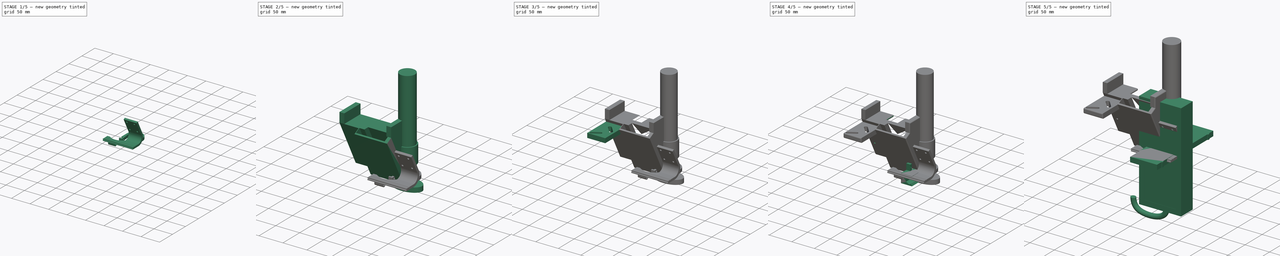
[diagram: build sequence overview — one tinted view per stage of 5, left to right]
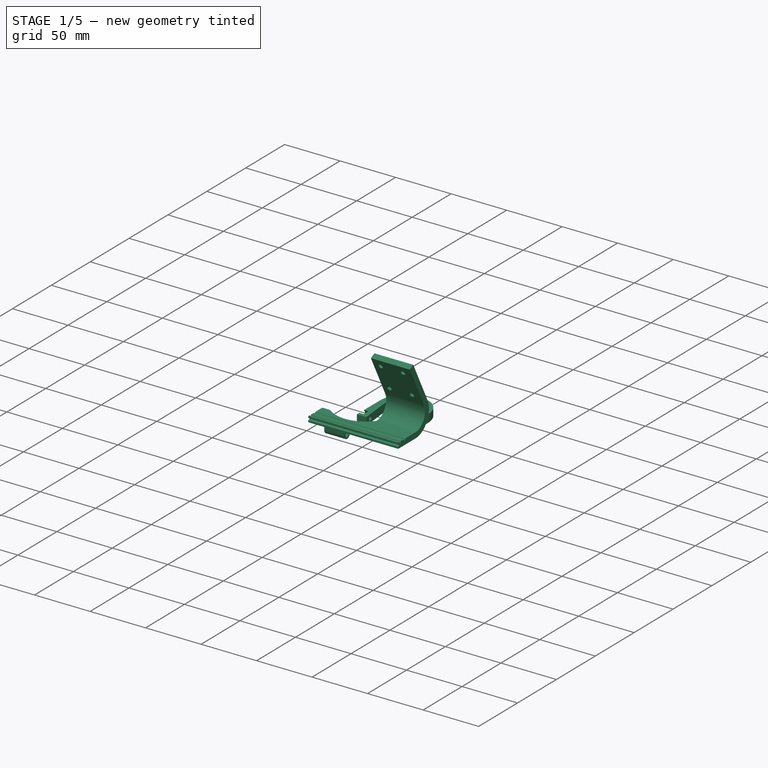
[diagram: stage 1 of 5 — iso view after this stage's code; geometry added in this stage tinted green]
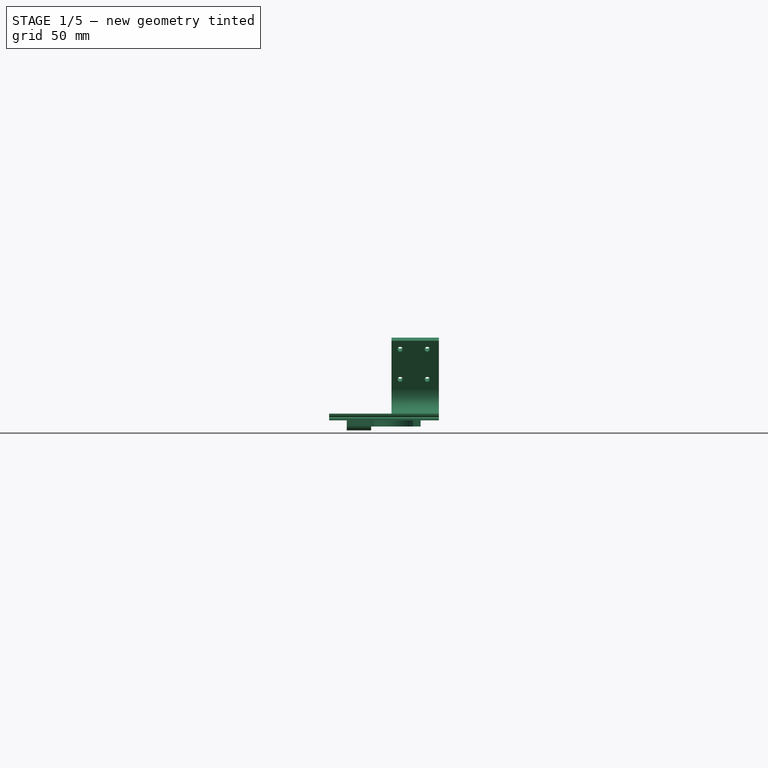
[diagram: stage 1 of 5 — front view after this stage's code; geometry added in this stage tinted green]
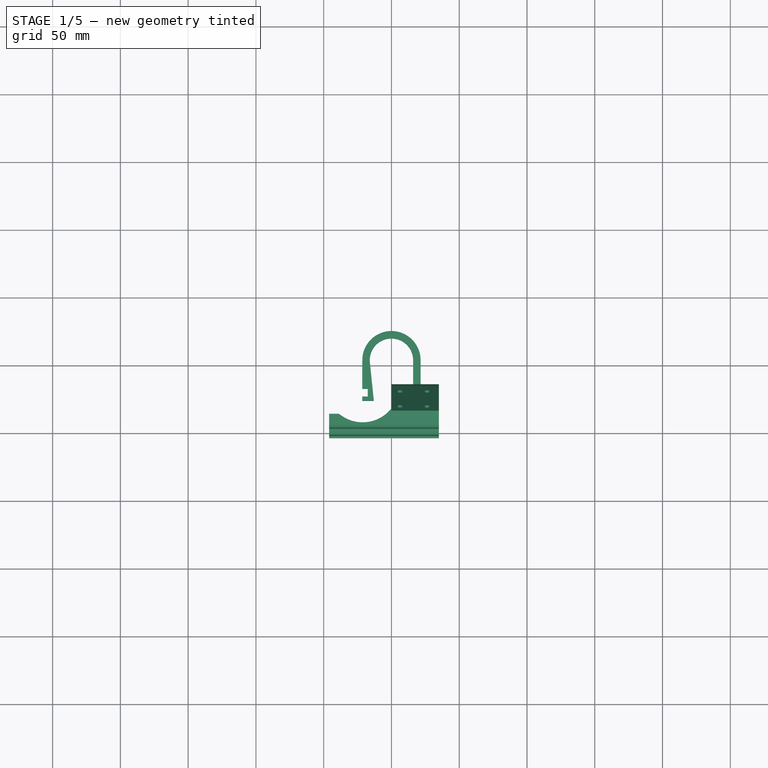
[diagram: stage 1 of 5 — top view after this stage's code; geometry added in this stage tinted green]
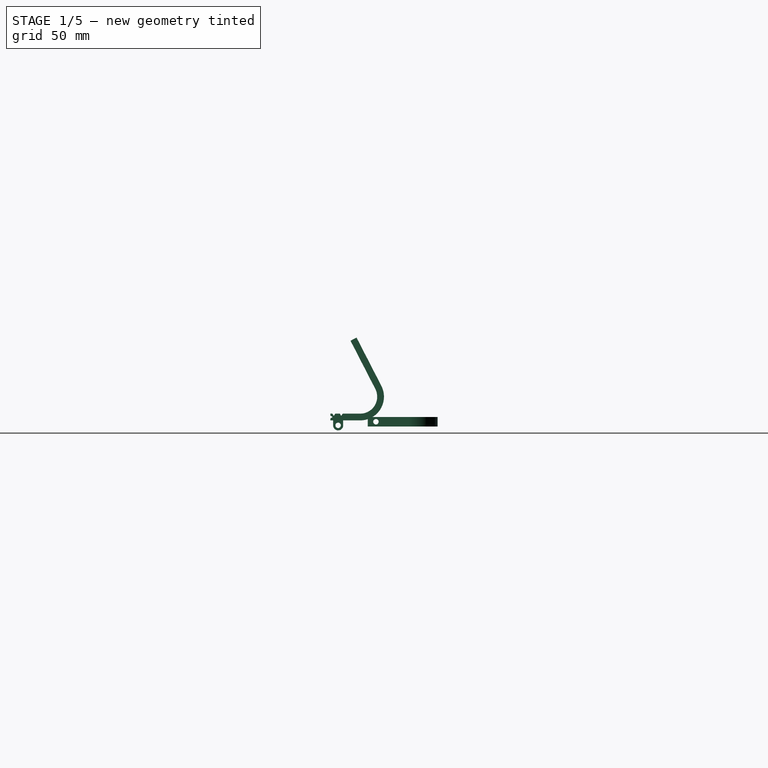
[diagram: stage 1 of 5 — right view after this stage's code; geometry added in this stage tinted green]
FCSTD DOCUMENT  (FreeCAD 1.0R39109 (Git))
Label: holder
License: All rights reserved
LicenseURL: https://en.wikipedia.org/wiki/All_rights_reserved
objects: Sketcher::SketchObject×29, PartDesign::Pad×21, PartDesign::Pocket×16, PartDesign::SubShapeBinder×9, PartDesign::Body×7, Image::ImagePlane×3, PartDesign::AdditivePipe×1, PartDesign::Plane×1, PartDesign::Fillet×1
note: 192 computed .brp shape members not serialized (recipe doc carries the construction recipe); baked Part::Feature solids carry a one-line shape summary decoded from their .brp

FEATURE [PartDesign::Body] Body004  label="Kabelkanal"
  AllowCompound = false
  Group = -> [Sketch021,Pad014,Sketch022,Pad015,Sketch023,Pad016]
  Origin = -> Origin004
  Placement = pos=(-127.28,-24,0) rot=(0,0,1;0rad)
  Tip = -> Pad016
FEATURE [Sketcher::SketchObject] Sketch024
  ArcFitTolerance = 1e-06
  AttachmentSupport = -> [XY_Plane005]
  FullyConstrained = true
  MakeInternals = false
  MapMode = 5
  sketch-geometry (8):
    g0: ArcOfCircle CenterX=0 CenterY=4 CenterZ=0 NormalX=0 NormalY=0 NormalZ=1 AngleXU=0 Radius=16 StartAngle=0 EndAngle=3.24404
    g1: ArcOfCircle CenterX=0 CenterY=4 CenterZ=0 NormalX=0 NormalY=0 NormalZ=1 AngleXU=0 Radius=21.5 StartAngle=0 EndAngle=3.14159
    g2: LineSegment StartX=-21.5 StartY=4 StartZ=0 EndX=-21.5 EndY=-26 EndZ=0
    g3: LineSegment StartX=-15.9161 StartY=2.36364 StartZ=0 EndX=-13 EndY=-26 EndZ=0
    g4: LineSegment StartX=16 StartY=4 StartZ=0 EndX=16 EndY=-26 EndZ=0
    g5: LineSegment StartX=21.5 StartY=4 StartZ=0 EndX=21.5 EndY=-26 EndZ=0
    g6: LineSegment StartX=-21.5 StartY=-26 StartZ=0 EndX=-13 EndY=-26 EndZ=0
    g7: LineSegment StartX=16 StartY=-26 StartZ=0 EndX=21.5 EndY=-26 EndZ=0
  constraints (21):
    c: Coincident(g1,g0)
    c: Radius(g0) = 16
    c: DistanceY(g-1,g0) = 4
    c: DistanceX(g0,g1) = 5.5
    c: PointOnObject(g0,g-2)
    c: Tangent(g4,g0) = 1.5708
    c: Tangent(g5,g1) = 1.5708
    c: Tangent(g3,g0) = -1.5708
    c: Tangent(g2,g1) = -1.5708
    c: Coincident(g6,g2)
    c: Coincident(g6,g3)
    c: Coincident(g7,g4)
    c: Coincident(g7,g5)
    c: Horizontal(g7)
    c: Horizontal(g6)
    c: Vertical(g5)
    c: Equal(g4,g5)
    c: Vertical(g2)
    c: Horizontal(g4,g3)
    c: DistanceY(g5,g5) = 30
    c: Distance(g3,g-2) = 13
FEATURE [PartDesign::Pad] Pad017
  Direction = (0,0,1)
  Length = 7
  Length2 = 10
  Profile = -> Sketch024
  ReferenceAxis = -> Sketch024 [N_Axis]
  Refine = true
  Suppressed = false
  Type = 0
FEATURE [Sketcher::SketchObject] Sketch025
  ArcFitTolerance = 1e-06
  AttachmentSupport = -> [Pad017]
  ExternalGeometry = -> [Pad017]
  FullyConstrained = true
  MakeInternals = false
  MapMode = 5
  Placement = pos=(-21.5,0,0) rot=(0.57735,-0.57735,-0.57735;2.0944rad)
  sketch-geometry (3):
    g0: Circle CenterX=20 CenterY=3.5 CenterZ=0 NormalX=0 NormalY=0 NormalZ=1 AngleXU=0 Radius=2
    g1: LineSegment [constr] StartX=18 StartY=3.5 StartZ=0 EndX=22 EndY=3.5 EndZ=0
    g2: Circle CenterX=20 CenterY=3.5 CenterZ=0 NormalX=0 NormalY=0 NormalZ=1 AngleXU=0 Radius=4.5
  constraints (8):
    c: PointOnObject(g1,g0)
    c: PointOnObject(g1,g0)
    c: PointOnObject(g0,g1)
    c: Symmetric(g-4,g-4,g1)
    c: Diameter(g0) = 4
    c: Distance(g1,g-4) = 4
    c: Coincident(g2,g0)
    c: Diameter(g2) = 9
FEATURE [PartDesign::SubShapeBinder] Binder008
  BindCopyOnChange = 0
  BindMode = 0
  ClaimChildren = false
  Context = -> Body005 [Binder008.]
  Fuse = false
  MakeFace = true
  OffsetFill = false
  OffsetIntersection = false
  OffsetJoinType = 0
  OffsetOpenResult = false
  PartialLoad = false
  Refine = true
  Relative = true
  Support = -> [Sketch025[Edge2]]
  _Version = 2
FEATURE [PartDesign::SubShapeBinder] Binder009
  BindCopyOnChange = 0
  BindMode = 0
  ClaimChildren = false
  Context = -> Body005 [Binder009.]
  Fuse = false
  MakeFace = true
  OffsetFill = false
  OffsetIntersection = false
  OffsetJoinType = 0
  OffsetOpenResult = false
  PartialLoad = false
  Refine = true
  Relative = true
  Support = -> [Sketch025[Edge1]]
  _Version = 2
FEATURE [PartDesign::Pocket] Pocket012
  BaseFeature = -> Pad017
  Direction = (-1,0,0)
  Length = 5
  Length2 = 5
  Profile = -> Binder009
  Refine = true
  Reversed = true
  Suppressed = false
  Type = 1
FEATURE [PartDesign::Pocket] Pocket013
  BaseFeature = -> Pocket012
  Direction = (-1,0,0)
  Length = 4
  Length2 = 5
  Profile = -> Binder008
  Refine = true
  Reversed = true
  Suppressed = false
  Type = 0
FEATURE [PartDesign::Body] Body005  label="Klammer"
  AllowCompound = false
  Group = -> [Sketch024,Pad017,Sketch025,Binder008,Binder009,Pocket012,Pocket013]
  Origin = -> Origin005
  Placement = pos=(-127.36,-27.84,4.34) rot=(0,1,0;3.14159rad)
  Tip = -> Pocket013
FEATURE [Sketcher::SketchObject] Sketch026
  ArcFitTolerance = 1e-06
  AttachmentSupport = -> [YZ_Plane006]
  FullyConstrained = true
  MakeInternals = false
  MapMode = 5
  Placement = pos=(0,0,0) rot=(0.57735,0.57735,0.57735;2.0944rad)
  expr: Constraints[0] = 180 ° - 117.2 °
  sketch-geometry (8):
    g0: LineSegment StartX=-16 StartY=30 StartZ=0 EndX=-34.2839 EndY=65.5767 EndZ=0
    g1: ArcOfCircle CenterX=-31.5653 CenterY=22.0005 CenterZ=0 NormalX=0 NormalY=0 NormalZ=1 AngleXU=0 Radius=17.5005 StartAngle=4.71239 EndAngle=6.75791
    g2: LineSegment StartX=-31.5653 StartY=4.5 StartZ=0 EndX=-53.5653 EndY=4.5 EndZ=0
    g3: LineSegment StartX=-53.5653 StartY=4.5 StartZ=0 EndX=-53.5653 EndY=9.5 EndZ=0
    g4: LineSegment StartX=-53.5653 StartY=9.5 StartZ=0 EndX=-31.5653 EndY=9.5 EndZ=0
    g5: ArcOfCircle CenterX=-31.5653 CenterY=22.0005 CenterZ=0 NormalX=0 NormalY=0 NormalZ=1 AngleXU=0 Radius=12.5005 StartAngle=4.71239 EndAngle=6.75791
    g6: LineSegment StartX=-20.4471 StartY=27.7145 StartZ=0 EndX=-38.731 EndY=63.2912 EndZ=0
    g7: LineSegment StartX=-38.731 StartY=63.2912 StartZ=0 EndX=-34.2839 EndY=65.5767 EndZ=0
  constraints (22):
    c: Angle(g0,g-1) = 1.09607
    c: DistanceY(g-1,g0) = 30
    c: DistanceX(g0,g-1) = 16
    c: Distance(g0,g0) = 40
    c: Tangent(g1,g0) = -1.5708
    c: Horizontal(g2)
    c: Coincident(g3,g2)
    c: Vertical(g3)
    c: Coincident(g4,g3)
    c: Horizontal(g4)
    c: Tangent(g2,g1) = 1.5708
    c: DistanceY(g3,g3) = 5
    c: Distance(g2,g-1) = 4.5
    c: Tangent(g5,g4) = -1.5708
    c: Coincident(g7,g6)
    c: Coincident(g7,g0)
    c: Perpendicular(g0,g7)
    c: Perpendicular(g7,g6)
    c: Tangent(g6,g5) = -1.5708
    c: Equal(g7,g3)
    c: Vertical(g4,g1)
    c: DistanceX(g4,g4) = 22
FEATURE [PartDesign::Pad] Pad018
  Direction = (1,0,0)
  Length = 35
  Length2 = 10
  Placement = pos=(0,0,0) rot=(1,1,1;2.0944rad)
  Profile = -> Sketch026
  ReferenceAxis = -> Sketch026 [N_Axis]
  Refine = true
  Suppressed = false
  Type = 0
FEATURE [Sketcher::SketchObject] Sketch027
  ArcFitTolerance = 1e-06
  AttachmentSupport = -> [Pad018]
  FullyConstrained = true
  MakeInternals = false
  MapMode = 5
  Placement = pos=(-1e-16,-0.460472,-0.236651) rot=(-0.462057,-0.462057,-0.756972;1.8457rad)
  sketch-geometry (4):
    g0: Circle CenterX=41.9424 CenterY=26.4275 CenterZ=0 NormalX=0 NormalY=0 NormalZ=1 AngleXU=0 Radius=2
    g1: Circle CenterX=66.9424 CenterY=26.4275 CenterZ=0 NormalX=0 NormalY=0 NormalZ=1 AngleXU=0 Radius=2
    g2: Circle CenterX=66.9424 CenterY=6.42749 CenterZ=0 NormalX=0 NormalY=0 NormalZ=1 AngleXU=0 Radius=2
    g3: Circle CenterX=41.9424 CenterY=6.42749 CenterZ=0 NormalX=0 NormalY=0 NormalZ=1 AngleXU=0 Radius=2
  constraints (12):
    c: Vertical(g3,g0)
    c: Horizontal(g3,g2)
    c: Horizontal(g0,g1)
    c: Vertical(g1,g2)
    c: Equal(g2,g3)
    c: Equal(g3,g0)
    c: Equal(g0,g1)
    c: Diameter(g0) = 4
    c: DistanceX(g0,g1) = 25
    c: DistanceY(g2,g1) = 20
    c: DistanceX(g3) = 41.9424
    c: DistanceY(g3) = 6.42749
FEATURE [PartDesign::Pocket] Pocket014
  BaseFeature = -> Pad018
  Direction = (1e-16,-0.889416,-0.457098)
  Length = 5
  Length2 = 5
  Placement = pos=(0,0,0) rot=(1,1,1;2.0944rad)
  Profile = -> Sketch027
  ReferenceAxis = -> Sketch027 [N_Axis]
  Refine = true
  Suppressed = false
  Type = 0
FEATURE [Sketcher::SketchObject] Sketch028
  ArcFitTolerance = 1e-06
  AttachmentSupport = -> [Pocket014]
  ExternalGeometry = -> [Pocket014]
  FullyConstrained = true
  MakeInternals = false
  MapMode = 5
  Placement = pos=(0,2.1e-15,9.5) rot=(0,0,-1;1.5708rad)
  sketch-geometry (6):
    g0: LineSegment StartX=53.5653 StartY=-1.42e-14 StartZ=0 EndX=31.5653 EndY=-2.13e-14 EndZ=0
    g1: LineSegment StartX=35.5653 StartY=-46 StartZ=0 EndX=53.5653 EndY=-46 EndZ=0
    g2: LineSegment StartX=53.5653 StartY=-46 StartZ=0 EndX=53.5653 EndY=-1.42e-14 EndZ=0
    g3: ArcOfCircle CenterX=14.9077 CenterY=-21.2491 CenterZ=0 NormalX=0 NormalY=0 NormalZ=1 AngleXU=0 Radius=27 StartAngle=5.70521 EndAngle=7.18912
    g4: LineSegment StartX=37.5221 StartY=-36 StartZ=0 EndX=35.5653 EndY=-39 EndZ=0
    g5: LineSegment StartX=35.5653 StartY=-39 StartZ=0 EndX=35.5653 EndY=-46 EndZ=0
  constraints (16):
    c: Coincident(g1,g2)
    c: Coincident(g2,g0)
    c: Horizontal(g1)
    c: Vertical(g2)
    c: Coincident(g0,g-3)
    c: DistanceY(g2,g2) = 46
    c: Coincident(g0,g-3)
    c: Coincident(g3,g0)
    c: Tangent(g4,g3) = 1.5708
    c: Coincident(g5,g4)
    c: Vertical(g5)
    c: Coincident(g5,g1)
    c: Radius(g3) = 27
    c: DistanceX(g1,g1) = 18
    c: DistanceY(g5,g5) = 7
    c: DistanceY(g4,g4) = 3
FEATURE [PartDesign::Pad] Pad019
  BaseFeature = -> Pocket014
  Direction = (0,0,1)
  Length = 10
  Length2 = 10
  Placement = pos=(0,0,0) rot=(1,1,1;2.0944rad)
  Profile = -> Sketch028
  ReferenceAxis = -> Sketch028 [N_Axis]
  Refine = true
  Reversed = true
  Suppressed = false
  Type = 3
  UpToFace = -> Pocket014 [Face10]
FEATURE [Sketcher::SketchObject] Sketch029
  ArcFitTolerance = 1e-06
  AttachmentOffset = pos=(0,0,-13) rot=(0,0,1;0rad)
  AttachmentSupport = -> [Pad019]
  ExternalGeometry = -> [Pad019]
  FullyConstrained = true
  MakeInternals = false
  MapMode = 5
  Placement = pos=(-33,-1.01e-14,-1.01e-14) rot=(0.57735,0.57735,-0.57735;4.18879rad)
  sketch-geometry (6):
    g0: LineSegment StartX=-44.1653 StartY=-4.5 StartZ=0 EndX=-44.1653 EndY=-0.85 EndZ=0
    g1: LineSegment StartX=-51.5653 StartY=-4.5 StartZ=0 EndX=-51.5653 EndY=-0.85 EndZ=0
    g2: LineSegment StartX=-51.5653 StartY=-4.5 StartZ=0 EndX=-44.1653 EndY=-4.5 EndZ=0
    g3: ArcOfCircle CenterX=-47.8653 CenterY=-0.85 CenterZ=0 NormalX=0 NormalY=0 NormalZ=1 AngleXU=0 Radius=3.7 StartAngle=0 EndAngle=3.14159
    g4: Circle CenterX=-47.8653 CenterY=-0.85 CenterZ=0 NormalX=0 NormalY=0 NormalZ=1 AngleXU=0 Radius=2
    g5: LineSegment [constr] StartX=-47.8653 StartY=-0.85 StartZ=0 EndX=-47.8653 EndY=-4.5 EndZ=0
  constraints (15):
    c: Vertical(g0)
    c: Vertical(g1)
    c: Coincident(g2,g1)
    c: Coincident(g2,g0)
    c: Horizontal(g2)
    c: PointOnObject(g0,g-3)
    c: Tangent(g3,g0) = -1.5708
    c: Coincident(g5,g4)
    c: Symmetric(g2,g2,g5)
    c: DistanceY(g5,g5) = 3.65
    c: Diameter(g4) = 4
    c: DistanceX(g-3,g1) = 2
    c: Distance(g-3,g5) = 5.7
    c: Tangent(g3,g1) = 1.5708
    c: Coincident(g3,g4)
FEATURE [PartDesign::Pad] Pad020
  BaseFeature = -> Pad019
  Direction = (-1,0,0)
  Length = 18
  Length2 = 10
  Placement = pos=(0,0,0) rot=(1,1,1;2.0944rad)
  Profile = -> Sketch029
  ReferenceAxis = -> Sketch029 [N_Axis]
  Refine = true
  Reversed = true
  Suppressed = false
  Type = 0
FEATURE [Sketcher::SketchObject] Sketch030
  ArcFitTolerance = 1e-06
  AttachmentSupport = -> [Pad020]
  ExternalGeometry = -> [Pad020]
  FullyConstrained = false
  MakeInternals = false
  MapMode = 5
  Placement = pos=(-46,-1.01e-14,-1.01e-14) rot=(0.57735,0.57735,-0.57735;4.18879rad)
  sketch-geometry (16):
    g0: LineSegment StartX=-53.5653 StartY=-6 StartZ=0 EndX=-52.0653 EndY=-6.86603 EndZ=0
    g1: LineSegment StartX=-52.0653 StartY=-6.86603 StartZ=0 EndX=-52.0653 EndY=-7.13397 EndZ=0
    g2: LineSegment StartX=-52.0653 StartY=-7.13397 StartZ=0 EndX=-53.5653 EndY=-8 EndZ=0
    g3: LineSegment StartX=-53.5653 StartY=-8 StartZ=0 EndX=-53.5653 EndY=-6 EndZ=0
    g4: LineSegment [constr] StartX=-52.0653 StartY=-7 StartZ=0 EndX=-53.5653 EndY=-7 EndZ=0
    g5: LineSegment [constr] StartX=-53.5653 StartY=-9.5 StartZ=0 EndX=-51.0653 EndY=-7 EndZ=0
    g6: LineSegment [constr] StartX=-53.5653 StartY=-4.5 StartZ=0 EndX=-51.0653 EndY=-7 EndZ=0
    g7: LineSegment StartX=-50.0653 StartY=-9.5 StartZ=0 EndX=-50.9313 EndY=-8 EndZ=0
    g8: LineSegment StartX=-50.9313 StartY=-8 StartZ=0 EndX=-51.1992 EndY=-8 EndZ=0
    g9: LineSegment StartX=-51.1992 StartY=-8 StartZ=0 EndX=-52.0653 EndY=-9.5 EndZ=0
    g10: LineSegment StartX=-52.0653 StartY=-9.5 StartZ=0 EndX=-50.0653 EndY=-9.5 EndZ=0
    g11: LineSegment [constr] StartX=-51.0653 StartY=-8 StartZ=0 EndX=-51.0653 EndY=-9.5 EndZ=0
    g12: LineSegment StartX=-45.6992 StartY=-8 StartZ=0 EndX=-46.5653 EndY=-9.5 EndZ=0
    g13: LineSegment StartX=-45.4313 StartY=-8 StartZ=0 EndX=-45.6992 EndY=-8 EndZ=0
    g14: LineSegment StartX=-44.5653 StartY=-9.5 StartZ=0 EndX=-45.4313 EndY=-8 EndZ=0
    g15: LineSegment StartX=-46.5653 StartY=-9.5 StartZ=0 EndX=-44.5653 EndY=-9.5 EndZ=0
  constraints (34):
    c: PointOnObject(g0,g-3)
    c: Coincident(g0,g1)
    c: Coincident(g1,g2)
    c: PointOnObject(g2,g-3)
    c: Coincident(g2,g3)
    c: Coincident(g3,g0)
    c: Equal(g2,g0)
    c: Angle(g2,g3) = 1.0472
    c: Distance(g3,g1) = 1.5
    c: DistanceY(g3,g3) = 2
    c: Symmetric(g1,g1,g4)
    c: Symmetric(g3,g3,g4)
    c: Symmetric(g-3,g-4,g4)
    c: Coincident(g5,g-4)
    c: Angle(g5,g-3) = 0.785398
    c: PointOnObject(g5,g4)
    c: Coincident(g6,g-3)
    c: Coincident(g6,g5)
    c: Coincident(g7,g8)
    c: Coincident(g8,g9)
    c: Coincident(g9,g10)
    c: Coincident(g10,g7)
    c: Equal(g9,g7)
    c: Angle(g9,g10) = -1.0472
    c: Distance(g10,g8) = 1.5
    c: Symmetric(g8,g8,g11)
    c: Symmetric(g10,g10,g11)
    c: Coincident(g14,g13)
    c: Coincident(g13,g12)
    c: Coincident(g12,g15)
    c: Coincident(g15,g14)
    c: Equal(g12,g14)
    c: Angle(g12,g15) = -1.0472
    c: Distance(g15,g13) = 1.5
FEATURE [PartDesign::Pocket] Pocket015
  BaseFeature = -> Pad020
  Direction = (1,0,0)
  Length = 81
  Length2 = 5
  Placement = pos=(0,0,0) rot=(1,1,1;2.0944rad)
  Profile = -> Sketch030
  ReferenceAxis = -> Sketch030 [N_Axis]
  Refine = true
  Suppressed = false
  Type = 0
FEATURE [PartDesign::Body] Body006  label="Wandverbinder"
  AllowCompound = false
  Group = -> [Sketch026,Pad018,Sketch027,Pocket014,Sketch028,Pad019,Sketch029,Pad020,Sketch030,Pocket015]
  Origin = -> Origin006
  Placement = pos=(-104.41,0,0) rot=(0,0,1;0rad)
  Tip = -> Pocket015
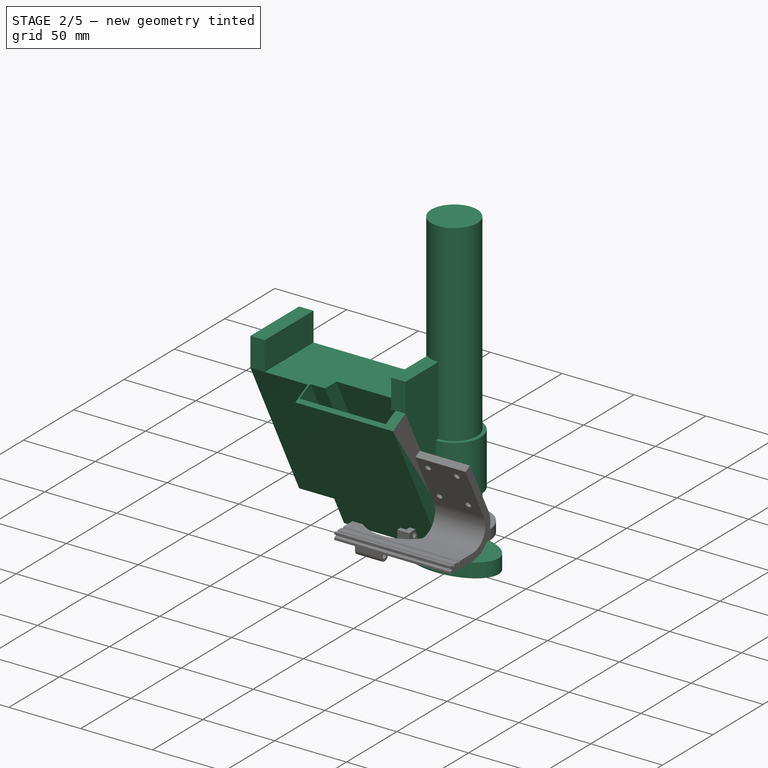
[diagram: stage 2 of 5 — iso view after this stage's code; geometry added in this stage tinted green]
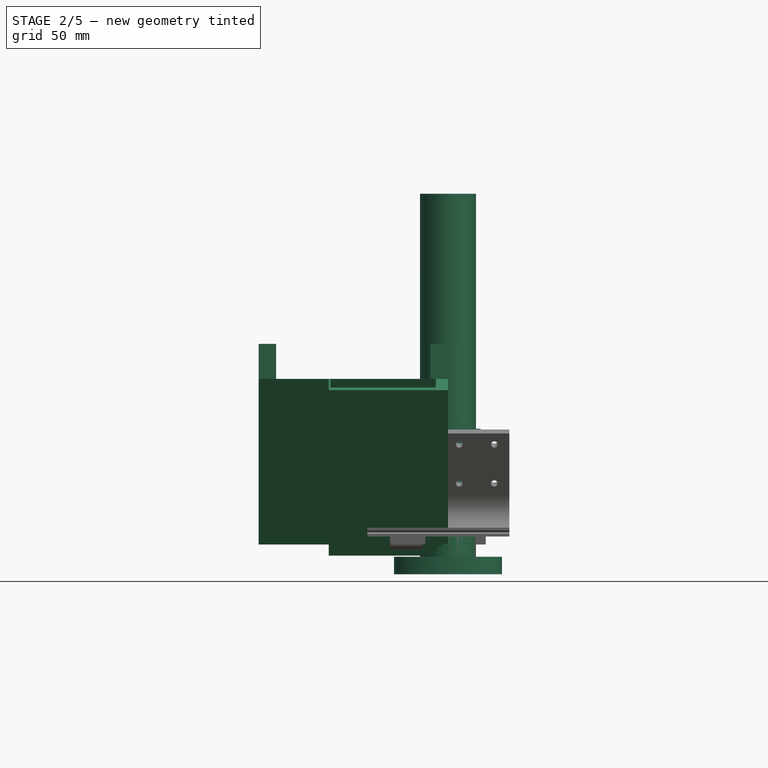
[diagram: stage 2 of 5 — front view after this stage's code; geometry added in this stage tinted green]
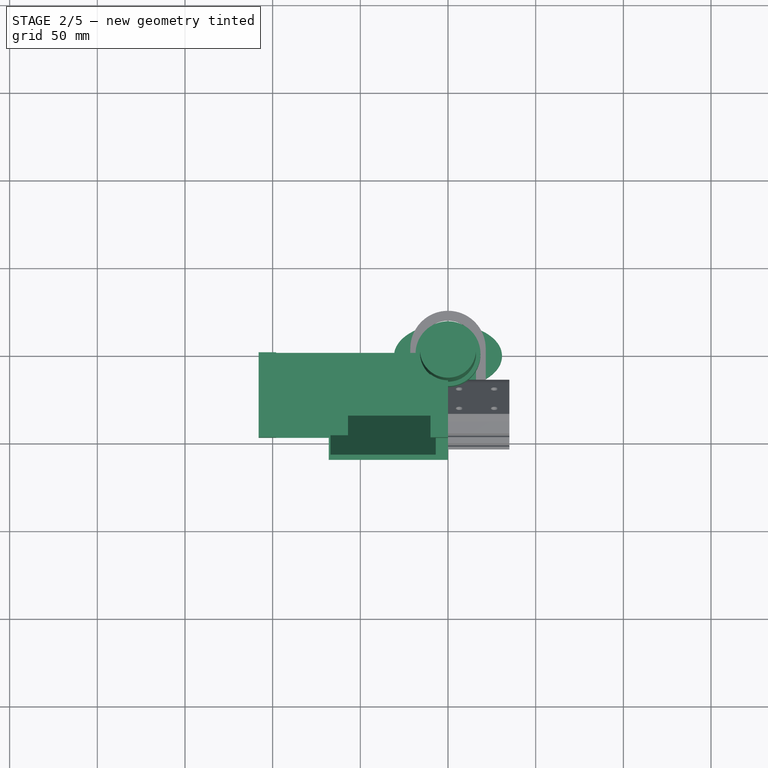
[diagram: stage 2 of 5 — top view after this stage's code; geometry added in this stage tinted green]
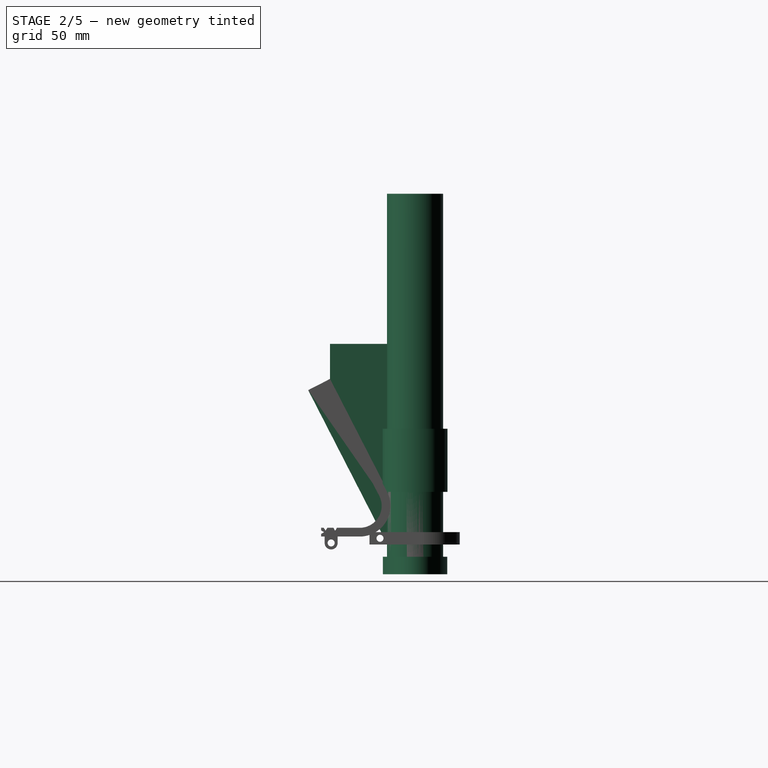
[diagram: stage 2 of 5 — right view after this stage's code; geometry added in this stage tinted green]
FEATURE [Sketcher::SketchObject] Sketch
  ArcFitTolerance = 1e-06
  AttachmentSupport = -> [YZ_Plane001]
  FullyConstrained = true
  MakeInternals = false
  MapMode = 5
  Placement = pos=(0,0,0) rot=(0.57735,0.57735,0.57735;2.0944rad)
  sketch-geometry (3):
    g0: LineSegment StartX=0 StartY=0 StartZ=0 EndX=0 EndY=94.4 EndZ=0
    g1: LineSegment StartX=0 StartY=94.4 StartZ=0 EndX=-48.5 EndY=94.4 EndZ=0
    g2: LineSegment StartX=-48.5 StartY=94.4 StartZ=0 EndX=0 EndY=0 EndZ=0
  constraints (8):
    c: Coincident(g-1,g0)
    c: PointOnObject(g0,g-2)
    c: Coincident(g0,g1)
    c: Horizontal(g1)
    c: Coincident(g1,g2)
    c: Coincident(g2,g0)
    c: DistanceY(g0,g0) = 94.4
    c: DistanceX(g1,g1) = 48.5
FEATURE [PartDesign::Pad] Pad
  Direction = (1,0,0)
  Length = 108
  Length2 = 10
  Placement = pos=(0,0,0) rot=(1,1,1;2.0944rad)
  Profile = -> Sketch
  ReferenceAxis = -> Sketch [N_Axis]
  Refine = true
  Reversed = true
  Suppressed = false
  Type = 0
FEATURE [Sketcher::SketchObject] Sketch001
  ArcFitTolerance = 1e-06
  AttachmentSupport = -> [Pad]
  ExternalGeometry = -> [Pad]
  FullyConstrained = true
  MakeInternals = false
  MapMode = 5
  Placement = pos=(0,0,0) rot=(0.57735,0.57735,0.57735;2.0944rad)
  sketch-geometry (4):
    g0: LineSegment StartX=0 StartY=114.4 StartZ=0 EndX=-48.5 EndY=114.4 EndZ=0
    g1: LineSegment StartX=-48.5 StartY=114.4 StartZ=0 EndX=-48.5 EndY=94.4 EndZ=0
    g2: LineSegment StartX=-48.5 StartY=94.4 StartZ=0 EndX=0 EndY=94.4 EndZ=0
    g3: LineSegment StartX=0 StartY=94.4 StartZ=0 EndX=0 EndY=114.4 EndZ=0
  constraints (11):
    c: Coincident(g0,g1)
    c: Coincident(g1,g2)
    c: Coincident(g2,g3)
    c: Coincident(g3,g0)
    c: Horizontal(g0)
    c: Horizontal(g2)
    c: Vertical(g1)
    c: Vertical(g3)
    c: PointOnObject(g0,g-2)
    c: Coincident(g1,g-3)
    c: DistanceY(g3,g3) = 20
FEATURE [PartDesign::Pad] Pad001
  BaseFeature = -> Pad
  Direction = (1,0,0)
  Length = 10
  Length2 = 10
  Placement = pos=(0,0,0) rot=(1,1,1;2.0944rad)
  Profile = -> Sketch001
  ReferenceAxis = -> Sketch001 [N_Axis]
  Refine = true
  Reversed = true
  Suppressed = false
  Type = 0
FEATURE [PartDesign::SubShapeBinder] Binder
  BindCopyOnChange = 0
  BindMode = 0
  ClaimChildren = false
  Context = -> Body001 [Binder.]
  Fuse = false
  MakeFace = true
  OffsetFill = false
  OffsetIntersection = false
  OffsetJoinType = 0
  OffsetOpenResult = false
  PartialLoad = false
  Placement = pos=(-108,0,0) rot=(0,0,1;0rad)
  Refine = true
  Relative = true
  Support = -> [Sketch001]
  _Version = 2
FEATURE [PartDesign::Pad] Pad004
  BaseFeature = -> Pad001
  Direction = (1,0,0)
  Length = 10
  Length2 = 10
  Placement = pos=(0,0,0) rot=(1,1,1;2.0944rad)
  Profile = -> Binder
  Refine = true
  Suppressed = false
  Type = 0
FEATURE [Sketcher::SketchObject] Sketch005
  ArcFitTolerance = 1e-06
  AttachmentSupport = -> [Pad004]
  ExternalGeometry = -> [Pad004]
  FullyConstrained = true
  MakeInternals = false
  MapMode = 5
  Placement = pos=(0,-6.3e-15,-3.2e-15) rot=(0.649201,0.649201,-0.39633;2.38692rad)
  sketch-geometry (4):
    g0: LineSegment StartX=-106.13 StartY=-9.95e-14 StartZ=0 EndX=-106.13 EndY=-68 EndZ=0
    g1: LineSegment StartX=-106.13 StartY=-68 StartZ=0 EndX=4.26e-14 EndY=-68 EndZ=0
    g2: LineSegment StartX=4.26e-14 StartY=-68 StartZ=0 EndX=4.26e-14 EndY=-9.95e-14 EndZ=0
    g3: LineSegment StartX=4.26e-14 StartY=-9.95e-14 StartZ=0 EndX=-106.13 EndY=-9.95e-14 EndZ=0
  constraints (11):
    c: Coincident(g0,g1)
    c: Coincident(g1,g2)
    c: Coincident(g2,g3)
    c: Coincident(g3,g0)
    c: Vertical(g0)
    c: Vertical(g2)
    c: Horizontal(g1)
    c: PointOnObject(g1,g-4)
    c: DistanceY(g2,g2) = 68
    c: Coincident(g0,g-3)
    c: Horizontal(g3)
FEATURE [PartDesign::Pad] Pad005
  BaseFeature = -> Pad004
  Direction = (0,-0.889474,-0.456986)
  Length = 14
  Length2 = 10
  Placement = pos=(0,0,0) rot=(1,1,1;2.0944rad)
  Profile = -> Sketch005
  ReferenceAxis = -> Sketch005 [N_Axis]
  Refine = true
  Suppressed = false
  Type = 0
FEATURE [Sketcher::SketchObject] Sketch006
  ArcFitTolerance = 1e-06
  AttachmentSupport = -> [Pad005]
  FullyConstrained = false
  MakeInternals = false
  MapMode = 5
  Placement = pos=(-1.06e-14,-48.5,94.4) rot=(0.228843,0.228843,-0.946183;1.62609rad)
  sketch-geometry (8):
    g0: LineSegment StartX=10.69 StartY=-7.01499 StartZ=0 EndX=-1.31 EndY=-7.01499 EndZ=0
    g1: LineSegment StartX=-1.31 StartY=-67.015 StartZ=0 EndX=10.69 EndY=-67.015 EndZ=0
    g2: LineSegment StartX=10.69 StartY=-67.015 StartZ=0 EndX=10.69 EndY=-7.01499 EndZ=0
    g3: LineSegment StartX=-1.31 StartY=-7.01499 StartZ=0 EndX=-1.31 EndY=-9.01499 EndZ=0
    g4: LineSegment StartX=-1.31 StartY=-9.01499 StartZ=0 EndX=-11.31 EndY=-9.01499 EndZ=0
    g5: LineSegment StartX=-11.31 StartY=-9.01499 StartZ=0 EndX=-11.31 EndY=-57.015 EndZ=0
    g6: LineSegment StartX=-11.31 StartY=-57.015 StartZ=0 EndX=-1.31 EndY=-57.015 EndZ=0
    g7: LineSegment StartX=-1.31 StartY=-57.015 StartZ=0 EndX=-1.31 EndY=-67.015 EndZ=0
  constraints (23):
    c: Coincident(g1,g2)
    c: Coincident(g2,g0)
    c: Horizontal(g0)
    c: Horizontal(g1)
    c: Vertical(g2)
    c: Coincident(g0,g3)
    c: Coincident(g3,g4)
    c: Horizontal(g4)
    c: Coincident(g4,g5)
    c: Vertical(g5)
    c: Coincident(g5,g6)
    c: Horizontal(g6)
    c: Coincident(g6,g7)
    c: Coincident(g7,g1)
    c: Vertical(g7)
    c: Vertical(g3)
    c: Vertical(g3,g6)
    c: DistanceX(g4,g4) = 10
    c: DistanceY(g2,g2) = 60
    c: Distance(g0,g0) = 12
    c: DistanceY(g3,g3) = 2
    c: DistanceX(g-1,g0) = 10.69
    c: DistanceY(g7,g7) = 10
FEATURE [PartDesign::Pocket] Pocket001
  BaseFeature = -> Pad005
  Direction = (0,0.456986,-0.889474)
  Length = 79
  Length2 = 5
  Offset = -12
  Placement = pos=(0,0,0) rot=(1,1,1;2.0944rad)
  Profile = -> Sketch006
  ReferenceAxis = -> Sketch006 [N_Axis]
  Refine = true
  Suppressed = false
  Type = 2
FEATURE [PartDesign::Body] Body001  label="Halter"
  AllowCompound = false
  Group = -> [Sketch,Pad,Sketch001,Pad001,Binder,Pad004,Sketch005,Pad005,Sketch006,Pocket001,Sketch010,Pad008,Sketch011,Pocket004,Pocket005,Sketch015,Pocket006,Binder003,Pad010,DatumPlane,Sketch018,Pad011,Pad012,Pad013,Sketch019,Binder005,Pocket008,Binder006,Binder007,Pocket009,Pocket010,Sketch020,Pocket011,Fillet]
  Origin = -> Origin001
  Tip = -> Fillet
FEATURE [Image::ImagePlane] PXL_20251006_210355363
  Placement = pos=(300,0,0) rot=(1,0,0;1.5708rad)
  XSize = 300
  YSize = 533.33
FEATURE [Sketcher::SketchObject] Sketch021
  ArcFitTolerance = 1e-06
  AttachmentSupport = -> [XY_Plane004]
  FullyConstrained = true
  MakeInternals = false
  MapMode = 5
  sketch-geometry (1):
    g0: Circle CenterX=0 CenterY=0 CenterZ=0 NormalX=0 NormalY=0 NormalZ=1 AngleXU=0 Radius=16
  constraints (2):
    c: Coincident(g0,g-1)
    c: Diameter(g0) = 32
FEATURE [PartDesign::Pad] Pad014
  Direction = (0,0,1)
  Length = 200
  Length2 = 10
  Profile = -> Sketch021
  ReferenceAxis = -> Sketch021 [N_Axis]
  Refine = true
  Suppressed = false
  Type = 4
FEATURE [Sketcher::SketchObject] Sketch022
  ArcFitTolerance = 1e-06
  AttachmentOffset = pos=(0,0,-7) rot=(0,0,1;0rad)
  AttachmentSupport = -> [XY_Plane004]
  FullyConstrained = true
  MakeInternals = false
  MapMode = 5
  Placement = pos=(0,0,-7) rot=(0,0,1;0rad)
  sketch-geometry (5):
    g0: Ellipse CenterX=0 CenterY=0 CenterZ=0 NormalX=0 NormalY=0 NormalZ=1 MajorRadius=30.7864 MinorRadius=18.35 AngleXU=0
    g1: LineSegment [constr] StartX=30.7864 StartY=0 StartZ=0 EndX=-30.7864 EndY=0 EndZ=0
    g2: LineSegment [constr] StartX=0 StartY=18.35 StartZ=0 EndX=0 EndY=-18.35 EndZ=0
    g3: GeomPoint [constr] X=24.72 Y=0 Z=0
    g4: GeomPoint [constr] X=-24.72 Y=0 Z=0
  constraints (5):
    c: InternalAlignment(g1-g4 -> g0) x4
    c: Coincident(g0,g-1)
    c: PointOnObject(g1,g-1)
    c: DistanceY(g-1,g2) = 18.35
    c: DistanceX(g4,g-1) = 24.72
FEATURE [PartDesign::Pad] Pad015
  BaseFeature = -> Pad014
  Direction = (0,0,1)
  Length = 10
  Length2 = 10
  Profile = -> Sketch022
  ReferenceAxis = -> Sketch022 [N_Axis]
  Refine = true
  Reversed = true
  Suppressed = false
  Type = 0
FEATURE [Sketcher::SketchObject] Sketch023
  ArcFitTolerance = 1e-06
  AttachmentOffset = pos=(0,0,30) rot=(0,0,1;0rad)
  AttachmentSupport = -> [XY_Plane004]
  FullyConstrained = true
  MakeInternals = false
  MapMode = 5
  Placement = pos=(0,0,30) rot=(0,0,1;0rad)
  sketch-geometry (1):
    g0: Circle CenterX=0 CenterY=0 CenterZ=0 NormalX=0 NormalY=0 NormalZ=1 AngleXU=0 Radius=18.5
  constraints (2):
    c: Coincident(g0,g-1)
    c: Diameter(g0) = 37
FEATURE [PartDesign::Pad] Pad016
  BaseFeature = -> Pad015
  Direction = (0,0,1)
  Length = 36
  Length2 = 10
  Profile = -> Sketch023
  ReferenceAxis = -> Sketch023 [N_Axis]
  Refine = true
  Suppressed = false
  Type = 0
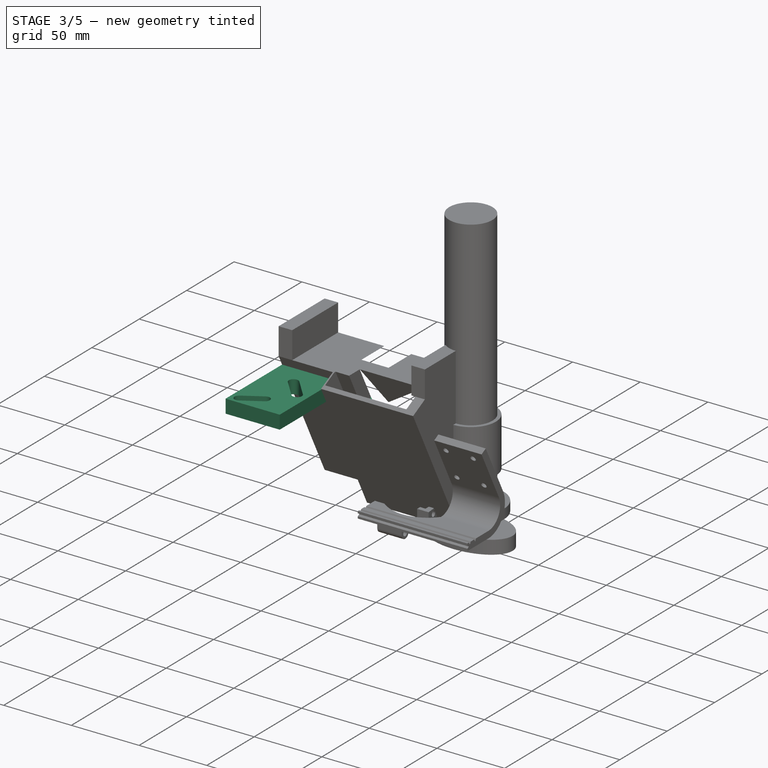
[diagram: stage 3 of 5 — iso view after this stage's code; geometry added in this stage tinted green]
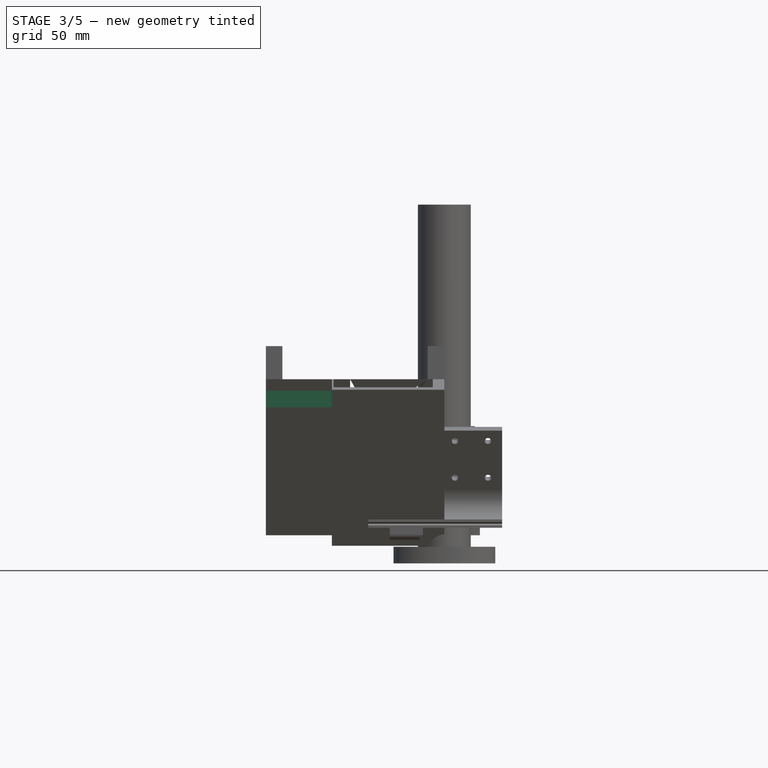
[diagram: stage 3 of 5 — front view after this stage's code; geometry added in this stage tinted green]
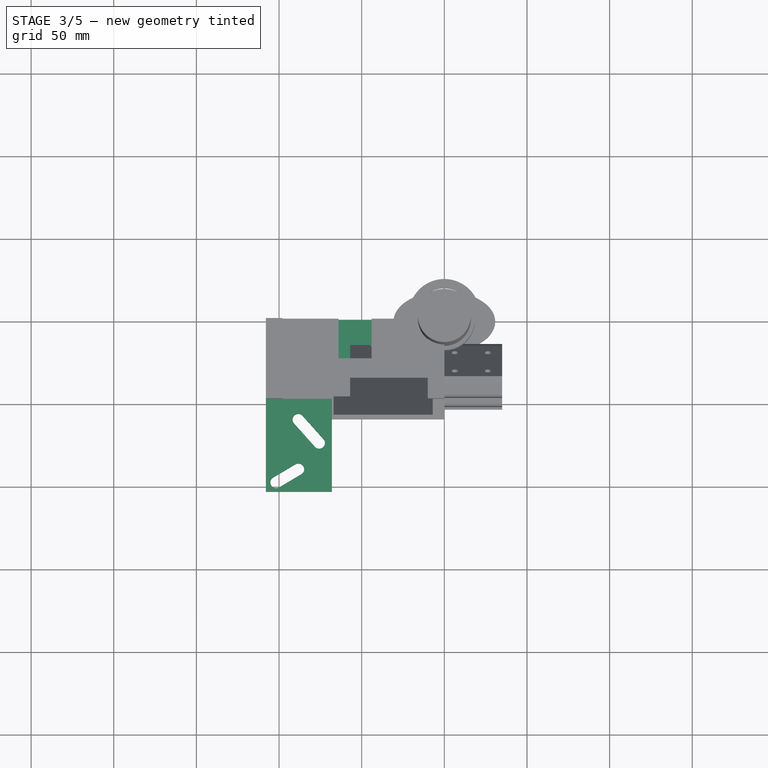
[diagram: stage 3 of 5 — top view after this stage's code; geometry added in this stage tinted green]
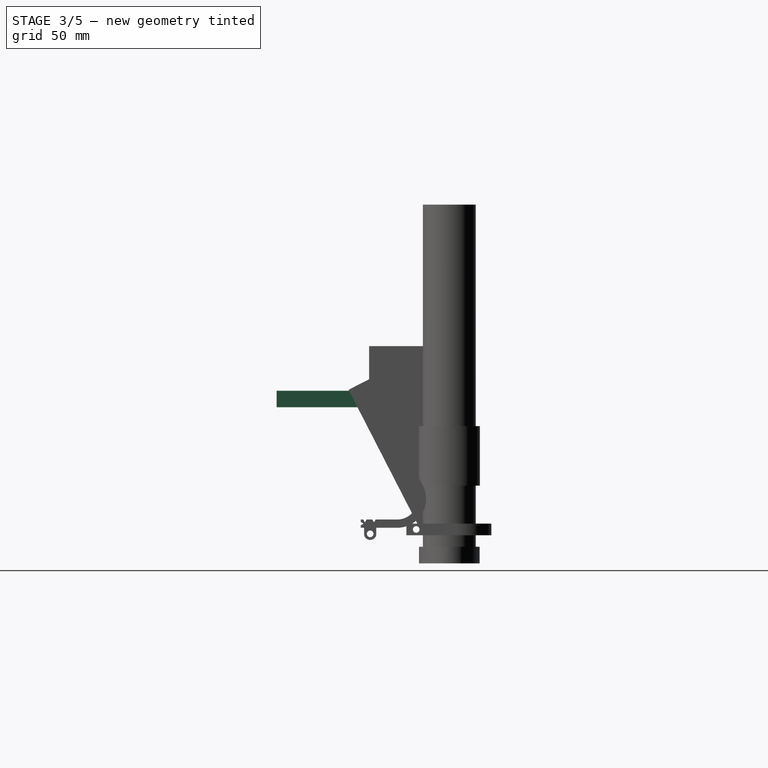
[diagram: stage 3 of 5 — right view after this stage's code; geometry added in this stage tinted green]
FEATURE [Sketcher::SketchObject] Sketch009
  ArcFitTolerance = 1e-06
  AttachmentSupport = -> [Pad007]
  ExternalGeometry = -> [Pad007]
  FullyConstrained = true
  MakeInternals = false
  MapMode = 5
  Placement = pos=(-6.755,0,2.2083e-12) rot=(0.707107,0,0.707107;3.14159rad)
  sketch-geometry (5):
    g0: Circle CenterX=0 CenterY=40 CenterZ=0 NormalX=0 NormalY=0 NormalZ=1 AngleXU=0 Radius=2.95
    g1: Circle CenterX=-6.4e-15 CenterY=10 CenterZ=0 NormalX=0 NormalY=0 NormalZ=1 AngleXU=0 Radius=2.95
    g2: LineSegment [constr] StartX=-10 StartY=25 StartZ=0 EndX=0 EndY=25 EndZ=0
    g3: Circle CenterX=0 CenterY=40 CenterZ=0 NormalX=0 NormalY=0 NormalZ=1 AngleXU=0 Radius=1.6
    g4: Circle CenterX=-6.4e-15 CenterY=10 CenterZ=0 NormalX=0 NormalY=0 NormalZ=1 AngleXU=0 Radius=1.6
  constraints (12):
    c: PointOnObject(g0,g-2)
    c: Diameter(g0) = 5.9
    c: Equal(g0,g1)
    c: Symmetric(g-3,g-3,g2)
    c: PointOnObject(g2,g-3)
    c: Symmetric(g1,g0,g2)
    c: DistanceY(g1,g0) = 30
    c: PointOnObject(g2,g-2)
    c: Coincident(g3,g0)
    c: Coincident(g4,g1)
    c: Diameter(g3) = 3.2
    c: Equal(g4,g3)
FEATURE [Sketcher::SketchObject] Sketch010
  ArcFitTolerance = 1e-06
  AttachmentOffset = pos=(0,0,-7) rot=(0,0,1;0rad)
  AttachmentSupport = -> [Pocket001]
  ExternalGeometry = -> [Pocket001]
  FullyConstrained = true
  MakeInternals = false
  MapMode = 5
  Placement = pos=(0,2.08e-14,87.4) rot=(0,0,-1;1.5708rad)
  sketch-geometry (4):
    g0: LineSegment StartX=38.5 StartY=-68 StartZ=0 EndX=38.5 EndY=-108 EndZ=0
    g1: LineSegment StartX=38.5 StartY=-108 StartZ=0 EndX=104.5 EndY=-108 EndZ=0
    g2: LineSegment StartX=104.5 StartY=-108 StartZ=0 EndX=104.5 EndY=-68 EndZ=0
    g3: LineSegment StartX=104.5 StartY=-68 StartZ=0 EndX=38.5 EndY=-68 EndZ=0
  constraints (12):
    c: Coincident(g0,g1)
    c: Coincident(g1,g2)
    c: Coincident(g2,g3)
    c: Coincident(g3,g0)
    c: Vertical(g0)
    c: Vertical(g2)
    c: Horizontal(g1)
    c: Horizontal(g3)
    c: PointOnObject(g-3,g1)
    c: PointOnObject(g-4,g3)
    c: Distance(g0,g-3) = 10
    c: Distance(g1,g1) = 66
FEATURE [PartDesign::Pad] Pad008
  BaseFeature = -> Pocket001
  Direction = (-1.4e-15,0,1)
  Length = 10
  Length2 = 10
  Placement = pos=(0,0,0) rot=(1,1,1;2.0944rad)
  Profile = -> Sketch010
  ReferenceAxis = -> Sketch010 [N_Axis]
  Refine = true
  Reversed = true
  Suppressed = false
  Type = 0
FEATURE [Sketcher::SketchObject] Sketch011
  ArcFitTolerance = 1e-06
  AttachmentSupport = -> [Pad008]
  ExternalGeometry = -> [Pad008]
  FullyConstrained = false
  MakeInternals = false
  MapMode = 5
  Placement = pos=(-1.099e-13,0,77.4) rot=(0.707107,0.707107,0;3.14159rad)
  sketch-geometry (8):
    g0: ArcOfCircle CenterX=-90.98 CenterY=-88.3 CenterZ=0 NormalX=0 NormalY=0 NormalZ=1 AngleXU=0 Radius=3.5 StartAngle=5.74745 EndAngle=8.88905
    g1: ArcOfCircle CenterX=-98.9579 CenterY=-101.739 CenterZ=0 NormalX=0 NormalY=0 NormalZ=1 AngleXU=0 Radius=3.5 StartAngle=2.60586 EndAngle=5.74745
    g2: LineSegment StartX=-87.9704 StartY=-90.0866 StartZ=0 EndX=-95.9483 EndY=-103.526 EndZ=0
    g3: LineSegment StartX=-93.9896 StartY=-86.5134 StartZ=0 EndX=-101.968 EndY=-99.9522 EndZ=0
    g4: ArcOfCircle CenterX=-60.94 CenterY=-88.3 CenterZ=0 NormalX=0 NormalY=0 NormalZ=1 AngleXU=0 Radius=3.5 StartAngle=3.98418 EndAngle=7.12577
    g5: ArcOfCircle CenterX=-75.0329 CenterY=-75.7334 CenterZ=0 NormalX=0 NormalY=0 NormalZ=1 AngleXU=0 Radius=3.5 StartAngle=0.842589 EndAngle=3.98418
    g6: LineSegment StartX=-63.2694 StartY=-90.9123 StartZ=0 EndX=-77.3623 EndY=-78.3457 EndZ=0
    g7: LineSegment StartX=-58.6106 StartY=-85.6877 StartZ=0 EndX=-72.7035 EndY=-73.1212 EndZ=0
  constraints (16):
    c: Tangent(g0,g2) = 1.5708
    c: Tangent(g0,g3) = -1.5708
    c: Tangent(g1,g2) = 1.5708
    c: Tangent(g1,g3) = -1.5708
    c: Equal(g0,g1)
    c: Radius(g0) = 3.5
    c: Tangent(g4,g6) = 1.5708
    c: Tangent(g4,g7) = -1.5708
    c: Tangent(g5,g6) = 1.5708
    c: Tangent(g5,g7) = -1.5708
    c: Equal(g4,g5)
    c: Radius(g4) = 3.5
    c: Distance(g0,g-2) = 90.98
    c: DistanceX(g4,g-1) = 60.94
    c: Horizontal(g0,g4)
    c: DistanceY(g4,g-1) = 88.3
FEATURE [PartDesign::Pocket] Pocket004
  BaseFeature = -> Pad008
  Direction = (-1.8e-15,0,1)
  Length = 5
  Length2 = 5
  Placement = pos=(0,0,0) rot=(1,1,1;2.0944rad)
  Profile = -> Sketch011
  ReferenceAxis = -> Sketch011 [N_Axis]
  Refine = true
  Suppressed = false
  Type = 1
FEATURE [PartDesign::Pocket] Pocket005
  BaseFeature = -> Pocket004
  Direction = (-1.8e-15,0,1)
  Length = 5
  Length2 = 5
  Placement = pos=(0,0,0) rot=(1,1,1;2.0944rad)
  Profile = -> Sketch011
  ReferenceAxis = -> Sketch011 [N_Axis]
  Refine = true
  Suppressed = false
  Type = 0
FEATURE [Sketcher::SketchObject] Sketch015
  ArcFitTolerance = 1e-06
  AttachmentSupport = -> [Pocket005]
  ExternalGeometry = -> [Pocket005]
  FullyConstrained = false
  MakeInternals = false
  MapMode = 5
  Placement = pos=(0,7.9e-15,0) rot=(0.57735,0.57735,0.57735;4.18879rad)
  sketch-geometry (9):
    g0: LineSegment StartX=94.4 StartY=-44 StartZ=0 EndX=54.4 EndY=-44 EndZ=0
    g1: LineSegment [constr] StartX=44.1297 StartY=-54 StartZ=0 EndX=94.4 EndY=-54 EndZ=0
    g2: LineSegment StartX=54.4 StartY=-44 StartZ=0 EndX=54.4 EndY=-98 EndZ=0
    g3: LineSegment StartX=54.4 StartY=-98 StartZ=0 EndX=58.0397 EndY=-108 EndZ=0
    g4: LineSegment StartX=94.4 StartY=-44 StartZ=0 EndX=94.4 EndY=-64 EndZ=0
    g5: LineSegment StartX=94.4 StartY=-64 StartZ=0 EndX=84.4 EndY=-78 EndZ=0
    g6: LineSegment StartX=84.4 StartY=-78 StartZ=0 EndX=84.4 EndY=-98 EndZ=0
    g7: LineSegment StartX=84.4 StartY=-98 StartZ=0 EndX=88.0397 EndY=-108 EndZ=0
    g8: LineSegment StartX=88.0397 StartY=-108 StartZ=0 EndX=58.0397 EndY=-108 EndZ=0
  constraints (25):
    c: Horizontal(g0)
    c: PointOnObject(g0,g-4)
    c: PointOnObject(g3,g-3)
    c: PointOnObject(g1,g-4)
    c: Symmetric(g-4,g-4,g1)
    c: Distance(g0,g1) = 10
    c: DistanceX(g0,g0) = 40
    c: Coincident(g0,g2)
    c: Vertical(g2)
    c: Coincident(g2,g3)
    c: Coincident(g4,g0)
    c: Coincident(g5,g4)
    c: Coincident(g6,g5)
    c: Vertical(g6)
    c: Coincident(g7,g6)
    c: PointOnObject(g7,g-3)
    c: Coincident(g8,g7)
    c: Coincident(g8,g3)
    c: DistanceY(g6,g6) = 20
    c: Horizontal(g6,g-4)
    c: Parallel(g7,g3)
    c: Distance(g8,g8) = 30
    c: Horizontal(g2,g6)
    c: Symmetric(g4,g0,g1)
    c: Angle(g3,g2) = 2.79253
FEATURE [PartDesign::Pocket] Pocket006
  BaseFeature = -> Pocket005
  Direction = (0,-1,1.8e-15)
  Length = 24
  Length2 = 5
  Placement = pos=(0,0,0) rot=(1,1,1;2.0944rad)
  Profile = -> Sketch015
  ReferenceAxis = -> Sketch015 [N_Axis]
  Refine = true
  Suppressed = false
  Type = 0
FEATURE [PartDesign::Body] Body002  label="Sprechanlage"
  AllowCompound = false
  Group = -> [Sketch003,Pad003,Sketch004,Pocket,Sketch016,Sketch017,AdditivePipe]
  Origin = -> Origin002
  Placement = pos=(-53.97,0,194.21) rot=(0,0,1;0rad)
  Tip = -> AdditivePipe
FEATURE [PartDesign::SubShapeBinder] Binder003
  BindCopyOnChange = 0
  BindMode = 0
  ClaimChildren = false
  Context = -> Body001 [Binder003.]
  Fuse = false
  MakeFace = true
  OffsetFill = false
  OffsetIntersection = false
  OffsetJoinType = 0
  OffsetOpenResult = false
  PartialLoad = false
  Refine = true
  Relative = true
  Support = -> [Pocket006[Edge83,Edge81,Edge82,Edge84]]
  _Version = 2
FEATURE [PartDesign::Pad] Pad010
  BaseFeature = -> Pocket006
  Direction = (8e-16,-0.889474,-0.456986)
  Length = 4
  Length2 = 10
  Placement = pos=(0,0,0) rot=(1,1,1;2.0944rad)
  Profile = -> Binder003
  ReferenceAxis = -> Pocket006 [Edge134]
  Refine = true
  Suppressed = false
  TaperAngle = 30
  Type = 0
FEATURE [PartDesign::Plane] DatumPlane
  AttachmentSupport = -> [Pad010]
  Length = 164.217
  MapMode = 13
  Placement = pos=(-48.3383,-21.0779,65.775) rot=(1,0,0;2.0454rad)
  ResizeMode = 0
  Width = 214.389
FEATURE [Sketcher::SketchObject] Sketch018
  ArcFitTolerance = 1e-06
  AttachmentSupport = -> [DatumPlane]
  ExternalGeometry = -> [Pad010]
  FullyConstrained = true
  MakeInternals = false
  MapMode = 5
  Placement = pos=(-48.3383,-21.0779,65.775) rot=(1,0,0;2.0454rad)
  sketch-geometry (4):
    g0: LineSegment StartX=4.33833 StartY=6.39424 StartZ=0 EndX=-8.67666 EndY=6.39424 EndZ=0
    g1: LineSegment StartX=-8.67666 StartY=6.39424 StartZ=0 EndX=-8.67666 EndY=-12.7885 EndZ=0
    g2: LineSegment StartX=-8.67666 StartY=-12.7885 StartZ=0 EndX=4.33833 EndY=-12.7885 EndZ=0
    g3: LineSegment StartX=4.33833 StartY=-12.7885 StartZ=0 EndX=4.33833 EndY=6.39424 EndZ=0
  constraints (9):
    c: Coincident(g0,g1)
    c: Coincident(g1,g2)
    c: Coincident(g2,g3)
    c: Coincident(g3,g0)
    c: Horizontal(g2)
    c: Vertical(g1)
    c: Coincident(g0,g-4)
    c: Coincident(g2,g-4)
    c: Coincident(g0,g-3)
FEATURE [PartDesign::Pad] Pad011
  BaseFeature = -> Pad010
  Direction = (0,-0.889474,-0.456986)
  Length = 10
  Length2 = 10
  Placement = pos=(0,0,0) rot=(1,1,1;2.0944rad)
  Profile = -> Sketch018
  ReferenceAxis = -> Sketch018 [N_Axis]
  Refine = true
  Suppressed = false
  Type = 0
FEATURE [PartDesign::Pad] Pad012
  BaseFeature = -> Pad011
  Direction = (2e-16,0.456986,-0.889474)
  Length = 50
  Length2 = 10
  Placement = pos=(0,0,0) rot=(1,1,1;2.0944rad)
  Profile = -> Pad011 [Face53]
  Refine = true
  Suppressed = false
  Type = 0
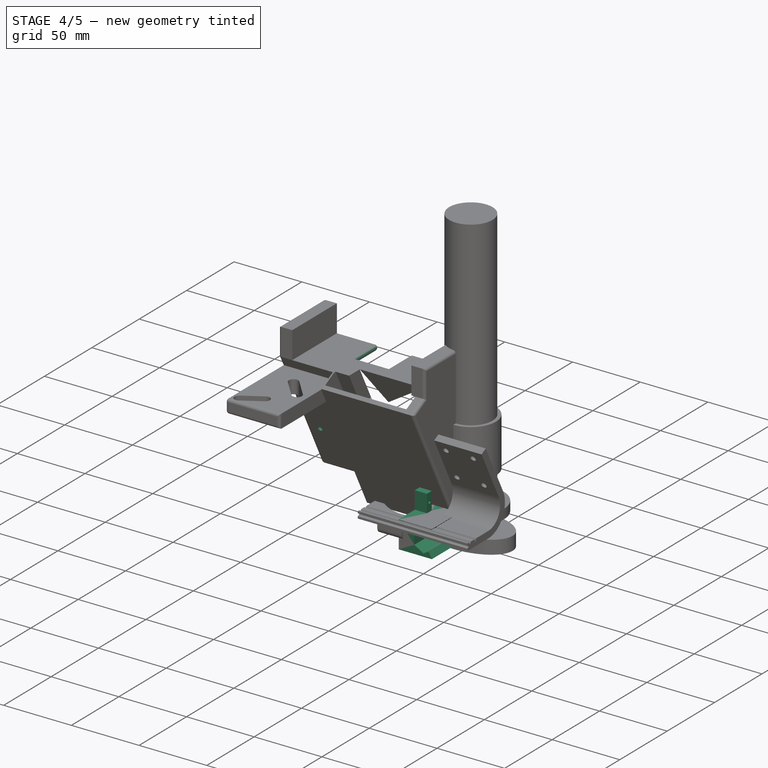
[diagram: stage 4 of 5 — iso view after this stage's code; geometry added in this stage tinted green]
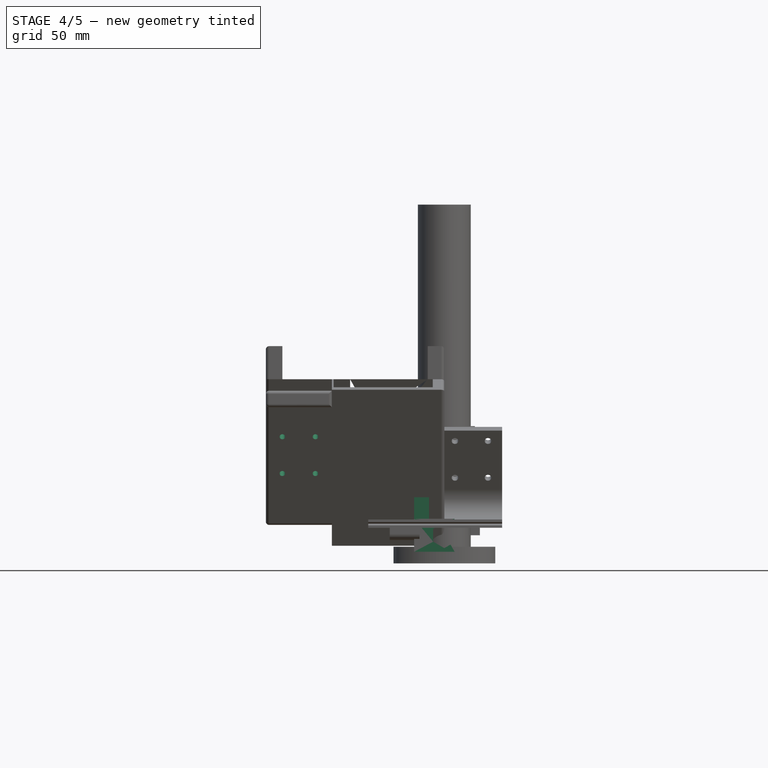
[diagram: stage 4 of 5 — front view after this stage's code; geometry added in this stage tinted green]
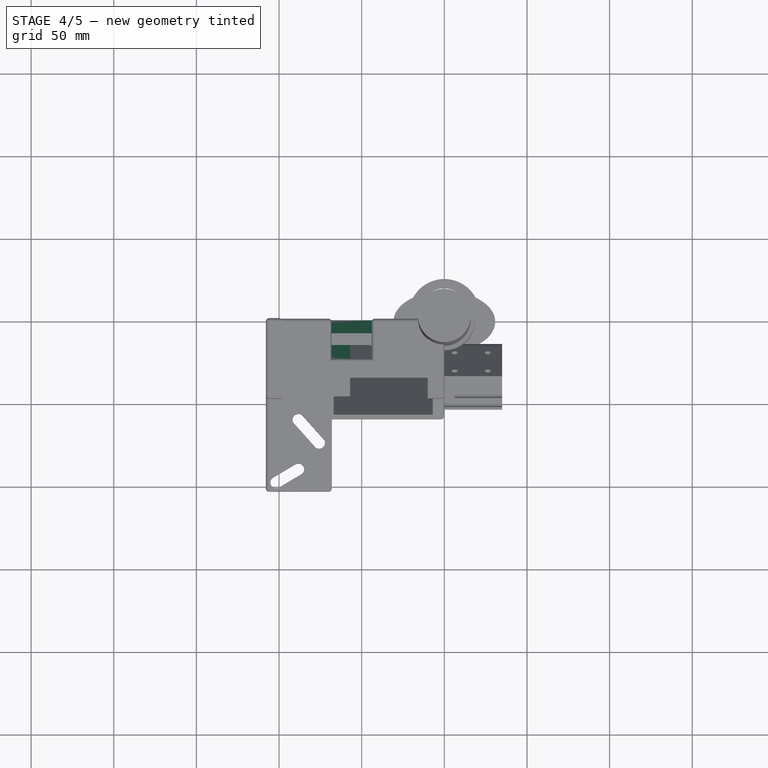
[diagram: stage 4 of 5 — top view after this stage's code; geometry added in this stage tinted green]
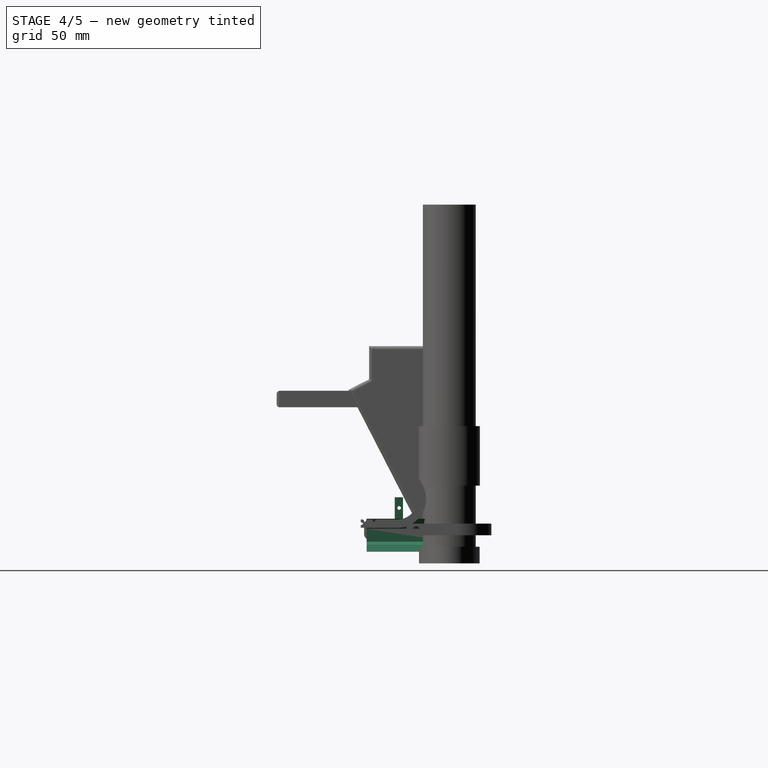
[diagram: stage 4 of 5 — right view after this stage's code; geometry added in this stage tinted green]
FEATURE [PartDesign::SubShapeBinder] Binder001
  BindCopyOnChange = 0
  BindMode = 0
  ClaimChildren = false
  Context = -> Body003 [Binder001.]
  Fuse = false
  MakeFace = true
  OffsetFill = false
  OffsetIntersection = false
  OffsetJoinType = 0
  OffsetOpenResult = false
  PartialLoad = false
  Refine = true
  Relative = true
  Support = -> [Sketch009[Edge1,Edge2]]
  _Version = 2
FEATURE [PartDesign::SubShapeBinder] Binder002
  BindCopyOnChange = 0
  BindMode = 0
  ClaimChildren = false
  Context = -> Body003 [Binder002.]
  Fuse = false
  MakeFace = true
  OffsetFill = false
  OffsetIntersection = false
  OffsetJoinType = 0
  OffsetOpenResult = false
  PartialLoad = false
  Refine = true
  Relative = true
  Support = -> [Sketch009[Edge3,Edge4]]
  _Version = 2
FEATURE [Sketcher::SketchObject] Sketch007
  ArcFitTolerance = 1e-06
  AttachmentSupport = -> [XZ_Plane003]
  FullyConstrained = true
  MakeInternals = false
  MapMode = 5
  Placement = pos=(0,0,0) rot=(1,0,0;1.5708rad)
  sketch-geometry (15):
    g0: LineSegment StartX=0 StartY=7.8 StartZ=0 EndX=-6.755 EndY=3.9 EndZ=0
    g1: LineSegment StartX=-6.755 StartY=3.9 StartZ=0 EndX=-6.755 EndY=-3.9 EndZ=0
    g2: LineSegment StartX=-6.755 StartY=-3.9 StartZ=0 EndX=0 EndY=-7.8 EndZ=0
    g3: Circle [constr] CenterX=0 CenterY=0 CenterZ=0 NormalX=0 NormalY=0 NormalZ=1 AngleXU=0 Radius=7.8
    g4: LineSegment StartX=3.72391 StartY=5.65 StartZ=0 EndX=0 EndY=7.8 EndZ=0
    g5: LineSegment StartX=0 StartY=-7.8 StartZ=0 EndX=3.72391 EndY=-5.65 EndZ=0
    g6: LineSegment [constr] StartX=3.72391 StartY=5.65 StartZ=0 EndX=3.72391 EndY=-5.65 EndZ=0
    g7: LineSegment [constr] StartX=3.72391 StartY=-5.65 StartZ=0 EndX=6.755 EndY=-3.9 EndZ=0
    g8: LineSegment [constr] StartX=3.72391 StartY=5.65 StartZ=0 EndX=6.755 EndY=3.9 EndZ=0
    g9: LineSegment [constr] StartX=6.755 StartY=3.9 StartZ=0 EndX=6.755 EndY=-3.9 EndZ=0
    g10: LineSegment StartX=3.72391 StartY=-5.65 StartZ=0 EndX=6.23538 EndY=-10 EndZ=0
    g11: LineSegment StartX=6.23538 StartY=-10 StartZ=0 EndX=-9.26 EndY=-10 EndZ=0
    g12: LineSegment StartX=-9.26 StartY=-10 StartZ=0 EndX=-9.26 EndY=10 EndZ=0
    g13: LineSegment StartX=-9.26 StartY=10 StartZ=0 EndX=6.23538 EndY=10 EndZ=0
    g14: LineSegment StartX=3.72391 StartY=5.65 StartZ=0 EndX=6.23538 EndY=10 EndZ=0
  constraints (41):
    c: Coincident(g0,g1)
    c: Coincident(g1,g2)
    c: Coincident(g2,g5)
    c: Coincident(g4,g0)
    c: Equal(g0,g1)
    c: Equal(g0,g2)
    c: PointOnObject(g0,g3)
    c: PointOnObject(g1,g3)
    c: PointOnObject(g2,g3)
    c: PointOnObject(g4,g3)
    c: Coincident(g3,g-1)
    c: PointOnObject(g0,g-2)
    c: Diameter(g3) = 15.6
    c: Vertical(g6)
    c: PointOnObject(g7,g3)
    c: PointOnObject(g8,g3)
    c: Parallel(g8,g4)
    c: Parallel(g7,g5)
    c: Coincident(g9,g8)
    c: Coincident(g9,g7)
    c: Vertical(g9)
    c: Equal(g9,g0)
    c: PointOnObject(g2,g-2)
    c: Horizontal(g11)
    c: Coincident(g12,g11)
    c: Vertical(g12)
    c: Coincident(g13,g12)
    c: Horizontal(g13)
    c: DistanceY(g12,g12) = 20
    c: Distance(g12,g-2) = 9.26
    c: Symmetric(g10,g13,g-1)
    c: Coincident(g5,g10)
    c: Coincident(g5,g7)
    c: Coincident(g4,g14)
    c: Coincident(g4,g8)
    c: Coincident(g6,g4)
    c: Coincident(g14,g13)
    c: Coincident(g6,g5)
    c: Coincident(g10,g11)
    c: Distance(g5,g5) = 4.3
    c: Angle(g10,g11) = 1.0472
FEATURE [PartDesign::Pad] Pad006
  Direction = (0,-1,2e-16)
  Length = 50
  Length2 = 10
  Placement = pos=(0,0,0) rot=(1,0,0;1.5708rad)
  Profile = -> Sketch007
  ReferenceAxis = -> Sketch007 [N_Axis]
  Refine = true
  Suppressed = false
  Type = 0
FEATURE [Sketcher::SketchObject] Sketch008
  ArcFitTolerance = 1e-06
  AttachmentSupport = -> [Pad006]
  ExternalGeometry = -> [Pad006]
  FullyConstrained = true
  MakeInternals = false
  MapMode = 5
  Placement = pos=(-9.26,0,0) rot=(0.707107,0,-0.707107;3.14159rad)
  sketch-geometry (15):
    g0: LineSegment StartX=-10 StartY=-2.7e-15 StartZ=0 EndX=10 EndY=-2.7e-15 EndZ=0
    g1: LineSegment StartX=10 StartY=-2.7e-15 StartZ=0 EndX=10 EndY=50 EndZ=0
    g2: LineSegment StartX=-10 StartY=5 StartZ=0 EndX=-23 EndY=5 EndZ=0
    g3: LineSegment StartX=-23 StartY=5 StartZ=0 EndX=-23 EndY=-2.7e-15 EndZ=0
    g4: LineSegment StartX=-23 StartY=-2.7e-15 StartZ=0 EndX=-10 EndY=-2.7e-15 EndZ=0
    g5: LineSegment StartX=-10 StartY=33 StartZ=0 EndX=-23 EndY=33 EndZ=0
    g6: LineSegment StartX=-23 StartY=33 StartZ=0 EndX=-23 EndY=28 EndZ=0
    g7: LineSegment StartX=-23 StartY=28 StartZ=0 EndX=-10 EndY=28 EndZ=0
    g8: LineSegment StartX=-10 StartY=5 StartZ=0 EndX=-10 EndY=28 EndZ=0
    g9: Circle CenterX=-16.5 CenterY=30.35 CenterZ=0 NormalX=0 NormalY=0 NormalZ=1 AngleXU=0 Radius=1.1
    g10: Circle CenterX=-16.5 CenterY=2.65 CenterZ=0 NormalX=0 NormalY=0 NormalZ=1 AngleXU=0 Radius=1.1
    g11: LineSegment [constr] StartX=-16.5 StartY=30.35 StartZ=0 EndX=-16.5 EndY=2.65 EndZ=0
    g12: LineSegment [constr] StartX=-10 StartY=16.5 StartZ=0 EndX=-23 EndY=16.5 EndZ=0
    g13: LineSegment StartX=10 StartY=50 StartZ=0 EndX=-10 EndY=50 EndZ=0
    g14: LineSegment StartX=-10 StartY=50 StartZ=0 EndX=-10 EndY=33 EndZ=0
  constraints (38):
    c: Coincident(g0,g1)
    c: Coincident(g2,g3)
    c: Coincident(g3,g4)
    c: Vertical(g3)
    c: Horizontal(g2)
    c: Horizontal(g4)
    c: Coincident(g5,g6)
    c: Coincident(g6,g7)
    c: Horizontal(g5)
    c: Horizontal(g7)
    c: Vertical(g6)
    c: Coincident(g8,g7)
    c: Vertical(g8)
    c: DistanceY(g6,g6) = 5
    c: DistanceY(g3,g3) = 5
    c: Vertical(g2,g6)
    c: DistanceY(g8,g8) = 23
    c: Coincident(g0,g-3)
    c: DistanceX(g5,g5) = 13
    c: Coincident(g0,g-4)
    c: Equal(g10,g9)
    c: Diameter(g9) = 2.2
    c: DistanceY(g10,g9) = 27.7
    c: Coincident(g11,g9)
    c: Coincident(g11,g10)
    c: Symmetric(g2,g2,g11)
    c: Coincident(g2,g8)
    c: PointOnObject(g2,g-3)
    c: Coincident(g4,g0)
    c: PointOnObject(g5,g-3)
    c: Symmetric(g8,g8,g12)
    c: Vertical(g6,g12)
    c: Symmetric(g9,g10,g12)
    c: Coincident(g1,g-4)
    c: Coincident(g13,g1)
    c: Coincident(g13,g-3)
    c: Coincident(g14,g13)
    c: Coincident(g14,g5)
FEATURE [PartDesign::Pad] Pad007
  BaseFeature = -> Pad006
  Direction = (-1,0,-2e-16)
  Length = 9
  Length2 = 10
  Placement = pos=(0,0,0) rot=(1,0,0;1.5708rad)
  Profile = -> Sketch008
  ReferenceAxis = -> Sketch008 [N_Axis]
  Refine = true
  Suppressed = false
  Type = 0
FEATURE [PartDesign::Body] Body003  label="Penholder"
  AllowCompound = false
  Group = -> [Sketch007,Pad006,Sketch008,Pad007,Sketch009,Binder001,Binder002,Pocket002,Pocket003,Sketch012,Pad009,Pocket007]
  Origin = -> Origin003
  Placement = pos=(-77.8839,-58.7948,115.71) rot=(0.211541,0.954201,0.211541;4.66553rad)
  Tip = -> Pocket007
FEATURE [Image::ImagePlane] PXL_20250912_192617610
  Placement = pos=(-51,-34,157) rot=(1,0,0;1.5708rad)
  XSize = 75
  YSize = 139
FEATURE [Image::ImagePlane] PXL_20251003_201904321
  Placement = pos=(-67,42,126) rot=(1,0,0;1.5708rad)
  XSize = 211.59
  YSize = 375.92
FEATURE [PartDesign::Pad] Pad013
  BaseFeature = -> Pad012
  Direction = (-1,0,-7e-16)
  Length = 10
  Length2 = 10
  Placement = pos=(0,0,0) rot=(1,1,1;2.0944rad)
  Profile = -> Pad012 [Face43]
  Refine = true
  Suppressed = false
  Type = 3
  UpToFace = -> Pad012 [Face4]
FEATURE [Sketcher::SketchObject] Sketch019
  ArcFitTolerance = 1e-06
  AttachmentSupport = -> [Pad013]
  ExternalGeometry = -> [Pad013]
  FullyConstrained = true
  MakeInternals = false
  MapMode = 5
  Placement = pos=(-1.2e-15,10.0599,5.16851) rot=(-0.462095,-0.462095,-0.756926;1.84576rad)
  sketch-geometry (14):
    g0: Circle CenterX=66.9863 CenterY=-98 CenterZ=0 NormalX=0 NormalY=0 NormalZ=1 AngleXU=0 Radius=1.7
    g1: Circle CenterX=66.9863 CenterY=-78 CenterZ=0 NormalX=0 NormalY=0 NormalZ=1 AngleXU=0 Radius=1.7
    g2: Circle CenterX=66.9863 CenterY=-78 CenterZ=0 NormalX=0 NormalY=0 NormalZ=1 AngleXU=0 Radius=3
    g3: Circle CenterX=66.9863 CenterY=-98 CenterZ=0 NormalX=0 NormalY=0 NormalZ=1 AngleXU=0 Radius=3
    g4: Circle CenterX=41.9863 CenterY=-98 CenterZ=0 NormalX=0 NormalY=0 NormalZ=1 AngleXU=0 Radius=3
    g5: Circle CenterX=41.9863 CenterY=-78 CenterZ=0 NormalX=0 NormalY=0 NormalZ=1 AngleXU=0 Radius=3
    g6: Circle CenterX=41.9863 CenterY=-78 CenterZ=0 NormalX=0 NormalY=0 NormalZ=1 AngleXU=0 Radius=1.7
    g7: Circle CenterX=41.9863 CenterY=-98 CenterZ=0 NormalX=0 NormalY=0 NormalZ=1 AngleXU=0 Radius=1.7
    g8: LineSegment [constr] StartX=41.9863 StartY=-98 StartZ=0 EndX=66.9863 EndY=-98 EndZ=0
    g9: LineSegment [constr] StartX=66.9863 StartY=-98 StartZ=0 EndX=66.9863 EndY=-78 EndZ=0
    g10: LineSegment [constr] StartX=66.9863 StartY=-78 StartZ=0 EndX=41.9863 EndY=-78 EndZ=0
    g11: LineSegment [constr] StartX=41.9863 StartY=-78 StartZ=0 EndX=41.9863 EndY=-98 EndZ=0
    g12: LineSegment [constr] StartX=66.9863 StartY=-98 StartZ=0 EndX=59.441 EndY=-108 EndZ=0
    g13: LineSegment [constr] StartX=66.9863 StartY=-98 StartZ=0 EndX=74.5317 EndY=-108 EndZ=0
  constraints (32):
    c: Coincident(g2,g1)
    c: Coincident(g3,g0)
    c: Coincident(g6,g5)
    c: Coincident(g7,g4)
    c: Coincident(g8,g4)
    c: Coincident(g8,g0)
    c: Coincident(g9,g0)
    c: Coincident(g9,g1)
    c: Vertical(g9)
    c: Coincident(g10,g1)
    c: Coincident(g10,g5)
    c: Coincident(g11,g5)
    c: Coincident(g11,g4)
    c: Perpendicular(g11,g8)
    c: Perpendicular(g9,g10)
    c: Equal(g6,g1)
    c: Equal(g1,g0)
    c: Equal(g0,g7)
    c: Equal(g4,g3)
    c: Equal(g3,g2)
    c: Equal(g2,g5)
    c: Diameter(g1) = 3.4
    c: Diameter(g2) = 6
    c: Distance(g1,g-4) = 10
    c: Distance(g0,g-3) = 10
    c: Coincident(g12,g0)
    c: Coincident(g12,g-3)
    c: Coincident(g13,g0)
    c: Coincident(g13,g-3)
    c: Equal(g13,g12)
    c: Equal(g11,g9)
    c: DistanceX(g10,g10) = 25
FEATURE [PartDesign::SubShapeBinder] Binder005
  BindCopyOnChange = 0
  BindMode = 0
  ClaimChildren = false
  Context = -> Body001 [Binder005.]
  Fuse = false
  MakeFace = true
  OffsetFill = false
  OffsetIntersection = false
  OffsetJoinType = 0
  OffsetOpenResult = false
  PartialLoad = false
  Refine = true
  Relative = true
  Support = -> [Sketch019[Edge8,Edge7,Edge2,Edge1]]
  _Version = 2
FEATURE [PartDesign::Pocket] Pocket008
  BaseFeature = -> Pad013
  Direction = (-2e-16,-0.889474,-0.456986)
  Length = 5
  Length2 = 5
  Placement = pos=(0,0,0) rot=(1,1,1;2.0944rad)
  Profile = -> Binder005
  Refine = true
  Suppressed = false
  Type = 1
FEATURE [PartDesign::SubShapeBinder] Binder006
  BindCopyOnChange = 0
  BindMode = 0
  ClaimChildren = false
  Context = -> Body001 [Binder006.]
  Fuse = false
  MakeFace = true
  OffsetFill = false
  OffsetIntersection = false
  OffsetJoinType = 0
  OffsetOpenResult = false
  PartialLoad = false
  Refine = true
  Relative = true
  Support = -> [Sketch019[Edge5,Edge6]]
  _Version = 2
FEATURE [PartDesign::SubShapeBinder] Binder007
  BindCopyOnChange = 0
  BindMode = 0
  ClaimChildren = false
  Context = -> Body001 [Binder007.]
  Fuse = false
  MakeFace = true
  OffsetFill = false
  OffsetIntersection = false
  OffsetJoinType = 0
  OffsetOpenResult = false
  PartialLoad = false
  Refine = true
  Relative = true
  Support = -> [Sketch019[Edge4,Edge3]]
  _Version = 2
FEATURE [PartDesign::Pocket] Pocket009
  BaseFeature = -> Pocket008
  Direction = (-2e-16,-0.889474,-0.456986)
  Length = 5
  Length2 = 5
  Placement = pos=(0,0,0) rot=(1,1,1;2.0944rad)
  Profile = -> Binder007
  Refine = true
  Suppressed = false
  Type = 0
FEATURE [PartDesign::Pocket] Pocket010
  BaseFeature = -> Pocket009
  Direction = (-2e-16,-0.889474,-0.456986)
  Length = 5
  Length2 = 5
  Placement = pos=(0,0,0) rot=(1,1,1;2.0944rad)
  Profile = -> Binder006
  Refine = true
  Reversed = true
  Suppressed = false
  Type = 1
FEATURE [Sketcher::SketchObject] Sketch020
  ArcFitTolerance = 1e-06
  AttachmentSupport = -> [Pocket010]
  ExternalGeometry = -> [Pocket010]
  FullyConstrained = true
  MakeInternals = false
  MapMode = 5
  Placement = pos=(-108,0,-3.78e-13) rot=(0.57735,0.57735,-0.57735;4.18879rad)
  sketch-geometry (3):
    g0: LineSegment StartX=0 StartY=-38.5758 StartZ=0 EndX=-10 EndY=-58.0397 EndZ=0
    g1: LineSegment StartX=-10 StartY=-58.0397 StartZ=0 EndX=0 EndY=-58.0397 EndZ=0
    g2: LineSegment StartX=0 StartY=-58.0397 StartZ=0 EndX=0 EndY=-38.5758 EndZ=0
  constraints (9):
    c: PointOnObject(g0,g-2)
    c: Coincident(g0,g1)
    c: Horizontal(g1)
    c: Coincident(g1,g2)
    c: Vertical(g2)
    c: Coincident(g0,g2)
    c: Parallel(g-3,g0)
    c: PointOnObject(g0,g-4)
    c: DistanceX(g1,g1) = 10
FEATURE [PartDesign::Pocket] Pocket011
  BaseFeature = -> Pocket010
  Direction = (1,1e-16,3.7e-15)
  Length = 0
  Length2 = 5
  Placement = pos=(0,0,0) rot=(1,1,1;2.0944rad)
  Profile = -> Sketch020
  ReferenceAxis = -> Sketch020 [N_Axis]
  Refine = true
  Suppressed = false
  Type = 3
  UpToFace = -> Pocket010 [Face30]
FEATURE [PartDesign::Fillet] Fillet
  Base = -> Pocket011 [Face4,Face39,Face10,Edge107,Edge77,Edge40,Edge36,Edge37,Edge39,Edge38,Edge78,Face25,Edge82]
  BaseFeature = -> Pocket011
  Placement = pos=(0,0,0) rot=(1,1,1;2.0944rad)
  Radius = 2
  Refine = true
  SupportTransform = false
  Suppressed = false
  UseAllEdges = false
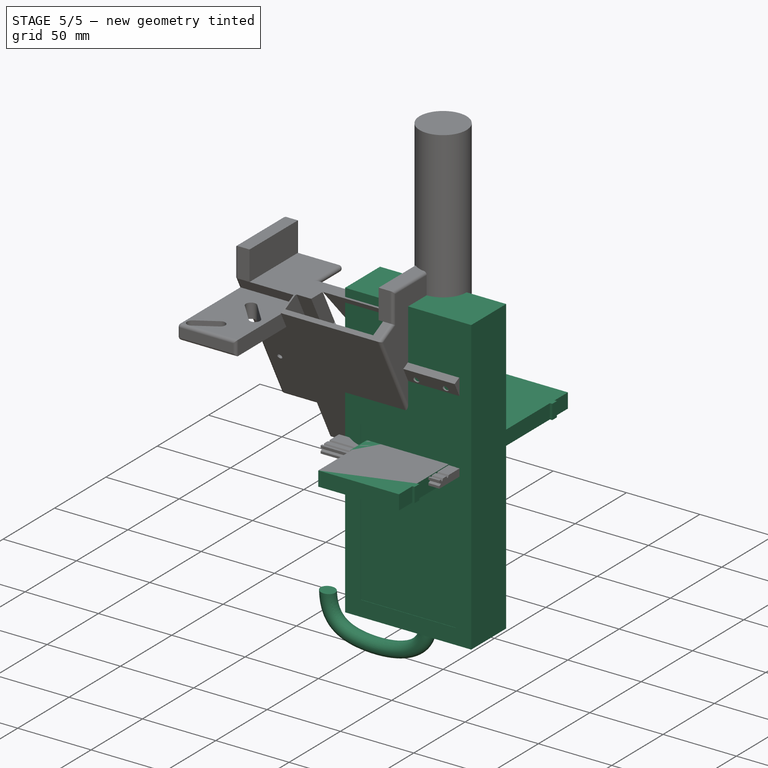
[diagram: stage 5 of 5 — iso view after this stage's code; geometry added in this stage tinted green]
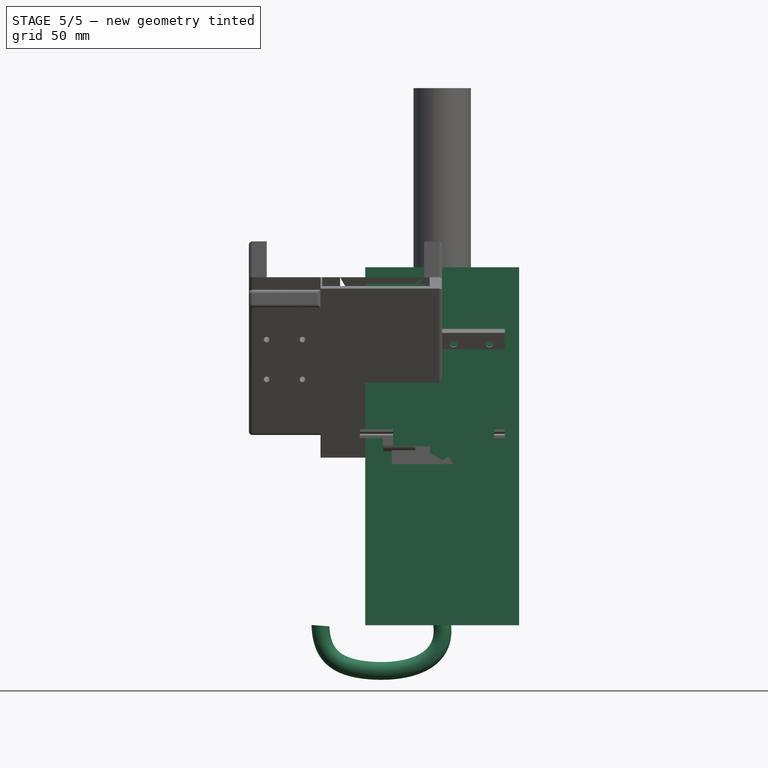
[diagram: stage 5 of 5 — front view after this stage's code; geometry added in this stage tinted green]
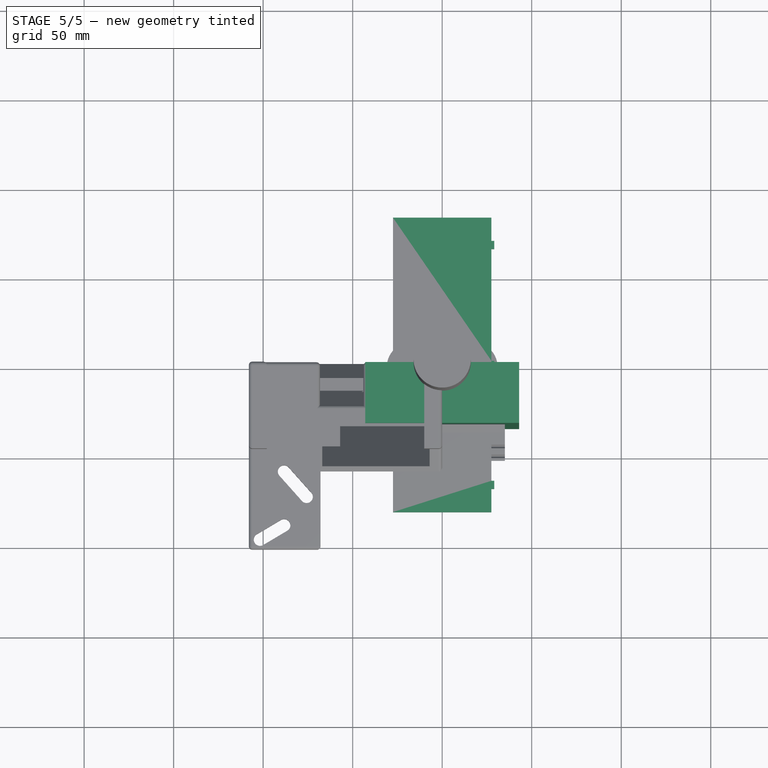
[diagram: stage 5 of 5 — top view after this stage's code; geometry added in this stage tinted green]
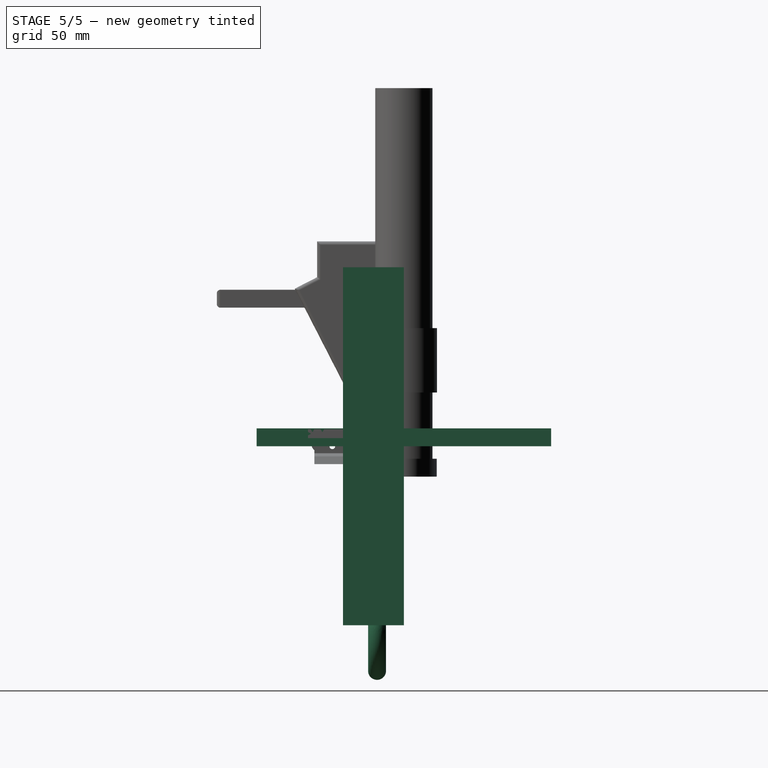
[diagram: stage 5 of 5 — right view after this stage's code; geometry added in this stage tinted green]
FEATURE [Sketcher::SketchObject] Sketch002
  ArcFitTolerance = 1e-06
  AttachmentSupport = -> [XY_Plane]
  FullyConstrained = true
  MakeInternals = false
  MapMode = 5
  sketch-geometry (17):
    g0: LineSegment StartX=-27.5 StartY=-82.25 StartZ=0 EndX=27.5 EndY=-82.25 EndZ=0
    g1: LineSegment StartX=27.5 StartY=82.25 StartZ=0 EndX=-27.5 EndY=82.25 EndZ=0
    g2: LineSegment StartX=-27.5 StartY=82.25 StartZ=0 EndX=-27.5 EndY=-82.25 EndZ=0
    g3: GeomPoint [constr] X=0 Y=0 Z=0
    g4: LineSegment StartX=27.5 StartY=-69.25 StartZ=0 EndX=29.1 EndY=-69.25 EndZ=0
    g5: LineSegment StartX=29.1 StartY=-69.25 StartZ=0 EndX=29.1 EndY=-64.75 EndZ=0
    g6: LineSegment StartX=29.1 StartY=-64.75 StartZ=0 EndX=27.5 EndY=-64.75 EndZ=0
    g7: LineSegment StartX=27.5 StartY=-2.25 StartZ=0 EndX=29.1 EndY=-2.25 EndZ=0
    g8: LineSegment StartX=29.1 StartY=-2.25 StartZ=0 EndX=29.1 EndY=2.25 EndZ=0
    g9: LineSegment StartX=29.1 StartY=2.25 StartZ=0 EndX=27.5 EndY=2.25 EndZ=0
    g10: LineSegment StartX=27.5 StartY=-2.25 StartZ=0 EndX=27.5 EndY=-64.75 EndZ=0
    g11: LineSegment StartX=27.5 StartY=-69.25 StartZ=0 EndX=27.5 EndY=-82.25 EndZ=0
    g12: LineSegment StartX=27.5 StartY=64.75 StartZ=0 EndX=29.1 EndY=64.75 EndZ=0
    g13: LineSegment StartX=29.1 StartY=64.75 StartZ=0 EndX=29.1 EndY=69.25 EndZ=0
    g14: LineSegment StartX=29.1 StartY=69.25 StartZ=0 EndX=27.5 EndY=69.25 EndZ=0
    g15: LineSegment StartX=27.5 StartY=2.25 StartZ=0 EndX=27.5 EndY=64.75 EndZ=0
    g16: LineSegment StartX=27.5 StartY=69.25 StartZ=0 EndX=27.5 EndY=82.25 EndZ=0
  constraints (46):
    c: Coincident(g1,g2)
    c: Coincident(g2,g0)
    c: Horizontal(g0)
    c: Horizontal(g1)
    c: Vertical(g2)
    c: Symmetric(g1,g0,g3)
    c: Coincident(g3,g-1)
    c: Coincident(g4,g5)
    c: Vertical(g5)
    c: Horizontal(g4)
    c: Distance(g4,g0) = 13
    c: DistanceY(g5,g5) = 4.5
    c: Coincident(g11,g0)
    c: Vertical(g11)
    c: Equal(g5,g8)
    c: Distance(g7,g0) = 80
    c: Coincident(g12,g13)
    c: Coincident(g13,g14)
    c: Vertical(g13)
    c: Horizontal(g14)
    c: Equal(g13,g8)
    c: Coincident(g16,g1)
    c: Vertical(g16)
    c: DistanceX(g0,g0) = 55
    c: Coincident(g14,g16)
    c: Vertical(g12,g14)
    c: Coincident(g4,g11)
    c: Coincident(g5,g6)
    c: Coincident(g6,g10)
    c: Vertical(g6,g4)
    c: Horizontal(g6)
    c: Coincident(g8,g9)
    c: Coincident(g7,g8)
    c: Coincident(g7,g10)
    c: Horizontal(g9)
    c: Horizontal(g7)
    c: Coincident(g9,g15)
    c: Vertical(g10)
    c: Vertical(g9,g7)
    c: Horizontal(g12)
    c: Coincident(g12,g15)
    c: Vertical(g15)
    c: Distance(g7,g7) = 1.6
    c: Symmetric(g7,g8,g-1)
    c: Equal(g9,g12)
    c: Symmetric(g12,g5,g-1)
FEATURE [PartDesign::Pad] Pad002
  Direction = (0,0,1)
  Length = 10
  Length2 = 10
  Profile = -> Sketch002
  ReferenceAxis = -> Sketch002 [N_Axis]
  Refine = true
  Suppressed = false
  Type = 0
FEATURE [PartDesign::Body] Body  label="Steckbrett"
  AllowCompound = false
  Group = -> [Sketch002,Pad002]
  Origin = -> Origin
  Placement = pos=(-35.02,-43.811,84.6253) rot=(0,-0.85264,0.522499;3.14159rad)
  Tip = -> Pad002
FEATURE [Sketcher::SketchObject] Sketch003
  ArcFitTolerance = 1e-06
  AttachmentSupport = -> [XZ_Plane002]
  FullyConstrained = true
  MakeInternals = false
  MapMode = 5
  Placement = pos=(0,0,0) rot=(1,0,0;1.5708rad)
  sketch-geometry (5):
    g0: LineSegment StartX=-43 StartY=-100 StartZ=0 EndX=43 EndY=-100 EndZ=0
    g1: LineSegment StartX=43 StartY=-100 StartZ=0 EndX=43 EndY=100 EndZ=0
    g2: LineSegment StartX=43 StartY=100 StartZ=0 EndX=-43 EndY=100 EndZ=0
    g3: LineSegment StartX=-43 StartY=100 StartZ=0 EndX=-43 EndY=-100 EndZ=0
    g4: GeomPoint [constr] X=0 Y=0 Z=0
  constraints (12):
    c: Coincident(g0,g1)
    c: Coincident(g1,g2)
    c: Coincident(g2,g3)
    c: Coincident(g3,g0)
    c: Horizontal(g0)
    c: Horizontal(g2)
    c: Vertical(g1)
    c: Vertical(g3)
    c: Symmetric(g2,g0,g4)
    c: Coincident(g4,g-1)
    c: DistanceX(g2,g2) = 86
    c: DistanceY(g3,g3) = 200
FEATURE [PartDesign::Pad] Pad003
  Direction = (0,-1,2e-16)
  Length = 34
  Length2 = 10
  Placement = pos=(0,0,0) rot=(1,0,0;1.5708rad)
  Profile = -> Sketch003
  ReferenceAxis = -> Sketch003 [N_Axis]
  Refine = true
  Suppressed = false
  Type = 0
FEATURE [Sketcher::SketchObject] Sketch004
  ArcFitTolerance = 1e-06
  AttachmentSupport = -> [Pad003]
  ExternalGeometry = -> [Pad003]
  FullyConstrained = true
  MakeInternals = false
  MapMode = 5
  Placement = pos=(0,-34,0) rot=(1,0,0;1.5708rad)
  sketch-geometry (7):
    g0: LineSegment StartX=-32.4 StartY=-89.4 StartZ=0 EndX=32.4 EndY=-89.4 EndZ=0
    g1: LineSegment StartX=32.4 StartY=-89.4 StartZ=0 EndX=32.4 EndY=18.6 EndZ=0
    g2: LineSegment StartX=32.4 StartY=18.6 StartZ=0 EndX=-32.4 EndY=18.6 EndZ=0
    g3: LineSegment StartX=-32.4 StartY=18.6 StartZ=0 EndX=-32.4 EndY=-89.4 EndZ=0
    g4: GeomPoint [constr] X=0 Y=-35.4 Z=0
    g5: LineSegment [constr] StartX=32.4 StartY=-89.4 StartZ=0 EndX=43 EndY=-100 EndZ=0
    g6: LineSegment [constr] StartX=-32.4 StartY=-89.4 StartZ=0 EndX=-43 EndY=-100 EndZ=0
  constraints (17):
    c: Coincident(g0,g1)
    c: Coincident(g1,g2)
    c: Coincident(g2,g3)
    c: Coincident(g3,g0)
    c: Horizontal(g0)
    c: Horizontal(g2)
    c: Vertical(g1)
    c: Vertical(g3)
    c: Symmetric(g2,g0,g4)
    c: PointOnObject(g4,g-2)
    c: Coincident(g5,g0)
    c: Coincident(g5,g-3)
    c: Coincident(g6,g0)
    c: Coincident(g6,g-3)
    c: Angle(g5,g-3) = 0.785398
    c: DistanceY(g3,g3) = 108
    c: DistanceX(g2,g2) = 64.8
FEATURE [PartDesign::Pocket] Pocket
  BaseFeature = -> Pad003
  Direction = (0,1,-2e-16)
  Length = 0.2
  Length2 = 5
  Placement = pos=(0,0,0) rot=(1,0,0;1.5708rad)
  Profile = -> Sketch004
  ReferenceAxis = -> Sketch004 [N_Axis]
  Refine = true
  Suppressed = false
  Type = 0
FEATURE [PartDesign::Pocket] Pocket002
  BaseFeature = -> Pad007
  Direction = (-1,0,3.268e-13)
  Length = 3.5
  Length2 = 5
  Placement = pos=(0,0,0) rot=(1,0,0;1.5708rad)
  Profile = -> Binder001
  Refine = true
  Suppressed = false
  Type = 0
FEATURE [PartDesign::Pocket] Pocket003
  BaseFeature = -> Pocket002
  Direction = (-1,0,3.268e-13)
  Length = 5
  Length2 = 5
  Placement = pos=(0,0,0) rot=(1,0,0;1.5708rad)
  Profile = -> Binder002
  Refine = true
  Suppressed = false
  Type = 1
FEATURE [Sketcher::SketchObject] Sketch012
  ArcFitTolerance = 1e-06
  AttachmentSupport = -> [Pocket003]
  ExternalGeometry = -> [Pocket003]
  FullyConstrained = true
  MakeInternals = false
  MapMode = 5
  Placement = pos=(-18.26,0,0) rot=(0.707107,0,-0.707107;3.14159rad)
  sketch-geometry (6):
    g0: LineSegment StartX=10 StartY=0 StartZ=0 EndX=10 EndY=50 EndZ=0
    g1: LineSegment StartX=10 StartY=50 StartZ=0 EndX=-10 EndY=50 EndZ=0
    g2: LineSegment StartX=-10 StartY=50 StartZ=0 EndX=-10 EndY=0 EndZ=0
    g3: LineSegment StartX=-10 StartY=0 StartZ=0 EndX=10 EndY=0 EndZ=0
    g4: Circle CenterX=0 CenterY=40 CenterZ=0 NormalX=0 NormalY=0 NormalZ=1 AngleXU=0 Radius=1.6
    g5: Circle CenterX=0 CenterY=10 CenterZ=0 NormalX=0 NormalY=0 NormalZ=1 AngleXU=0 Radius=1.6
  constraints (14):
    c: Coincident(g0,g1)
    c: Coincident(g1,g2)
    c: Coincident(g2,g3)
    c: Coincident(g3,g0)
    c: Vertical(g0)
    c: Vertical(g2)
    c: Horizontal(g1)
    c: Horizontal(g3)
    c: Coincident(g0,g-4)
    c: Coincident(g1,g-3)
    c: Coincident(g4,g-5)
    c: Equal(g4,g-5)
    c: Coincident(g5,g-6)
    c: Equal(g5,g-6)
FEATURE [PartDesign::Pad] Pad009
  BaseFeature = -> Pocket003
  Direction = (-1,0,-2e-16)
  Length = 10
  Length2 = 10
  Placement = pos=(0,0,0) rot=(1,0,0;1.5708rad)
  Profile = -> Sketch012
  ReferenceAxis = -> Sketch012 [N_Axis]
  Refine = true
  Suppressed = false
  Type = 0
FEATURE [Sketcher::SketchObject] Sketch016
  ArcFitTolerance = 1e-06
  AttachmentSupport = -> [Pocket]
  FullyConstrained = true
  MakeInternals = false
  MapMode = 5
  Placement = pos=(0,-4.4e-14,-100) rot=(1,0,0;3.14159rad)
  sketch-geometry (2):
    g0: Circle CenterX=0 CenterY=15 CenterZ=0 NormalX=0 NormalY=0 NormalZ=1 AngleXU=0 Radius=5
    g1: GeomPoint X=0 Y=20 Z=0
  constraints (5):
    c: PointOnObject(g0,g-2)
    c: PointOnObject(g1,g0)
    c: PointOnObject(g1,g-2)
    c: Diameter(g0) = 10
    c: DistanceY(g-1,g1) = 20
FEATURE [Sketcher::SketchObject] Sketch017
  ArcFitTolerance = 1e-06
  AttachmentSupport = -> [Pocket]
  ExternalGeometry = -> [Pocket]
  FullyConstrained = false
  MakeInternals = false
  MapMode = 5
  Placement = pos=(0,0,0) rot=(-1,0,0;1.5708rad)
  sketch-geometry (9):
    g0-g4: Circle [constr] x5 (B-spline internal-alignment scaffolding for g5; pole/knot coordinates omitted)
    g5: BSplineCurve PolesCount=5 KnotsCount=3 Degree=3 IsPeriodic=0
    g6: GeomPoint [constr] X=0 Y=100 Z=0
    g7: GeomPoint [constr] X=-43 Y=125 Z=0
    g8: GeomPoint [constr] X=-68 Y=100.215 Z=0
  constraints (10):
    c: Weight(g0) = 1
    c: Equal(g0, g1-g4) x4
    c: InternalAlignment(g0-g4 -> g5) x5
    c: InternalAlignment(g6,g5)
    c: InternalAlignment(g7,g5)
    c: InternalAlignment(g8,g5)
    c: Symmetric(g-3,g-3,g0)
    c: DistanceX(g5,g-3) = 25
    c: Vertical(g-3,g7)
    c: Distance(g7,g-3) = 25
FEATURE [PartDesign::AdditivePipe] AdditivePipe
  AuxilleryCurvelinear = true
  AuxillerySpineTangent = false
  BaseFeature = -> Pocket
  Binormal = (0,0,0)
  Mode = 0
  Placement = pos=(0,0,0) rot=(1,0,0;1.5708rad)
  Profile = -> Sketch016
  Refine = true
  Spine = -> Sketch017
  SpineTangent = false
  Suppressed = false
  Transformation = 0
  Transition = 0
FEATURE [PartDesign::Pocket] Pocket007
  BaseFeature = -> Pad009
  Direction = (-1,0,3.268e-13)
  Length = 8
  Length2 = 5
  Placement = pos=(0,0,0) rot=(1,0,0;1.5708rad)
  Profile = -> Pad009 [Face10,Face11]
  Refine = true
  Suppressed = false
  Type = 0
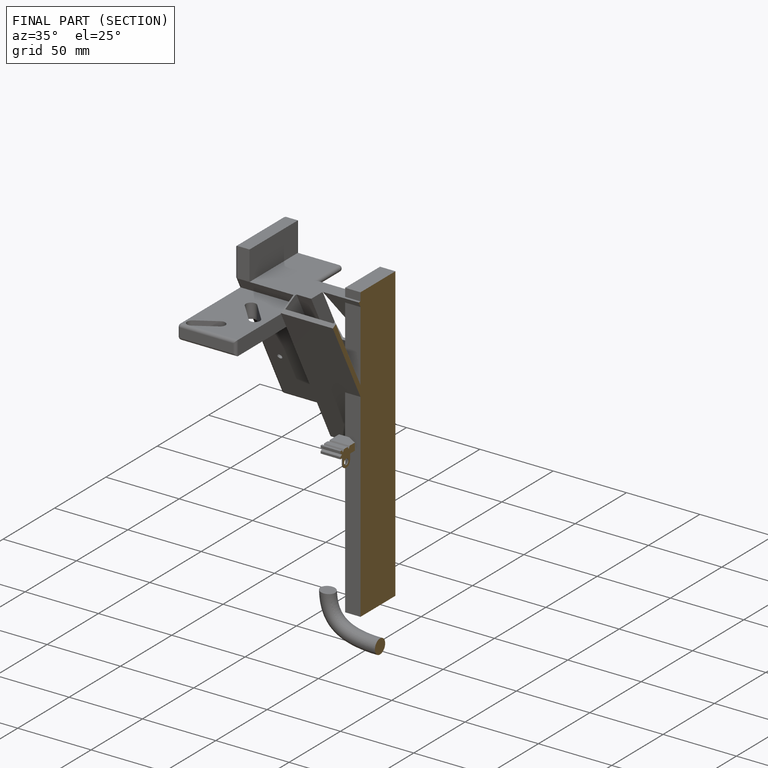
[diagram: finished part — half-section view (interior)]
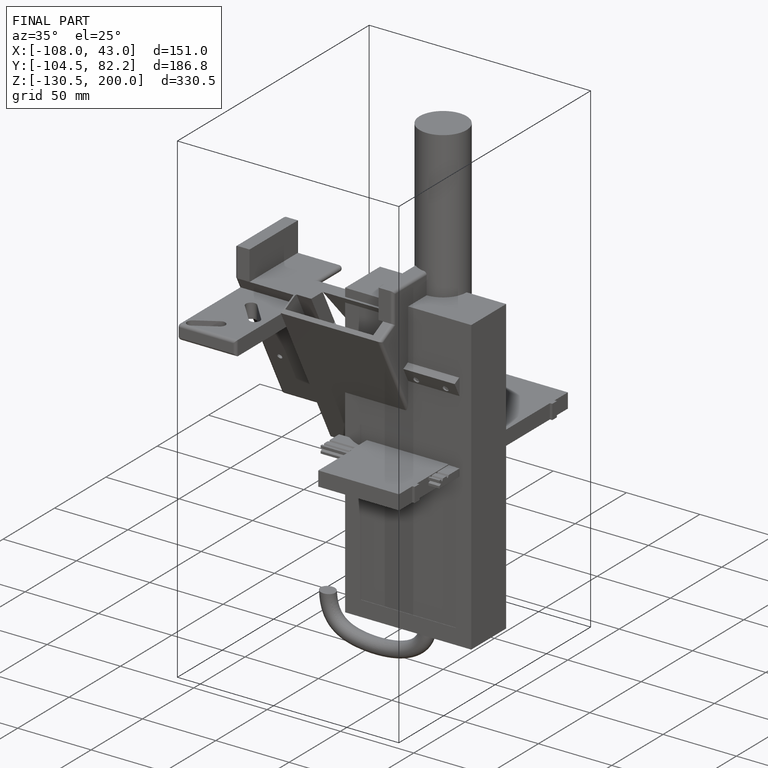
[diagram: finished part — iso view with bounding-box wireframe]
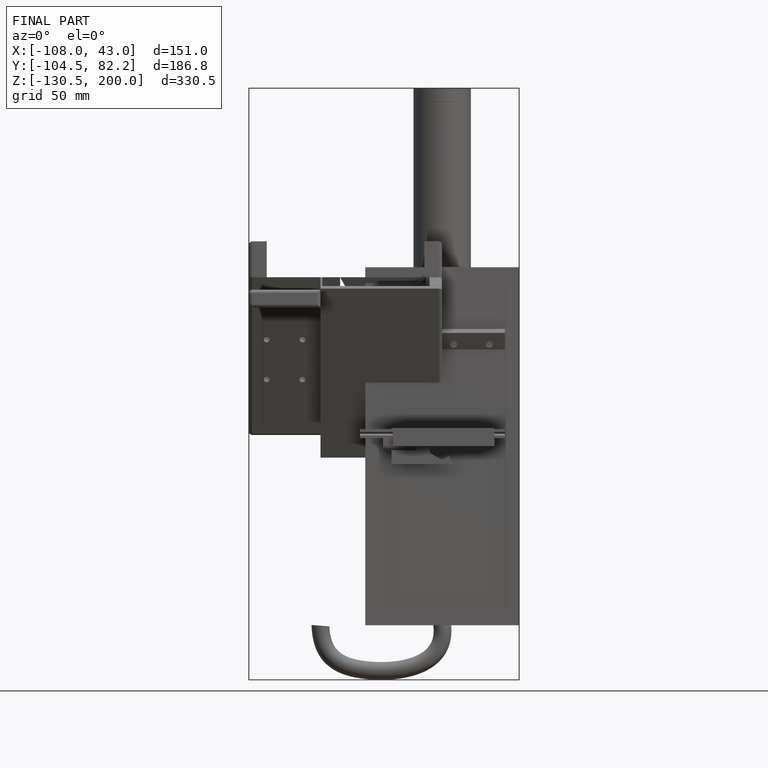
[diagram: finished part — front view with bounding-box wireframe]
